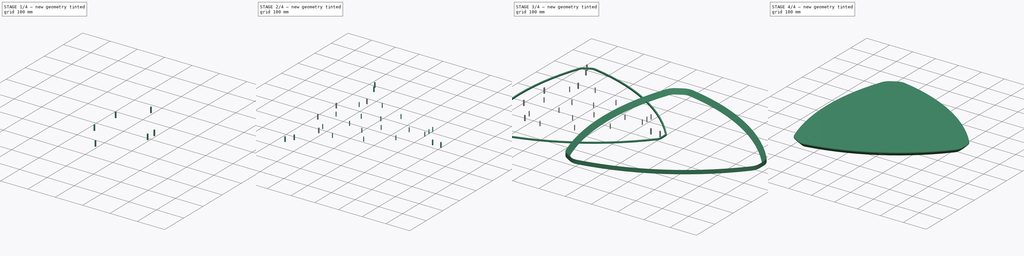
[diagram: build sequence overview — one tinted view per stage of 4, left to right]
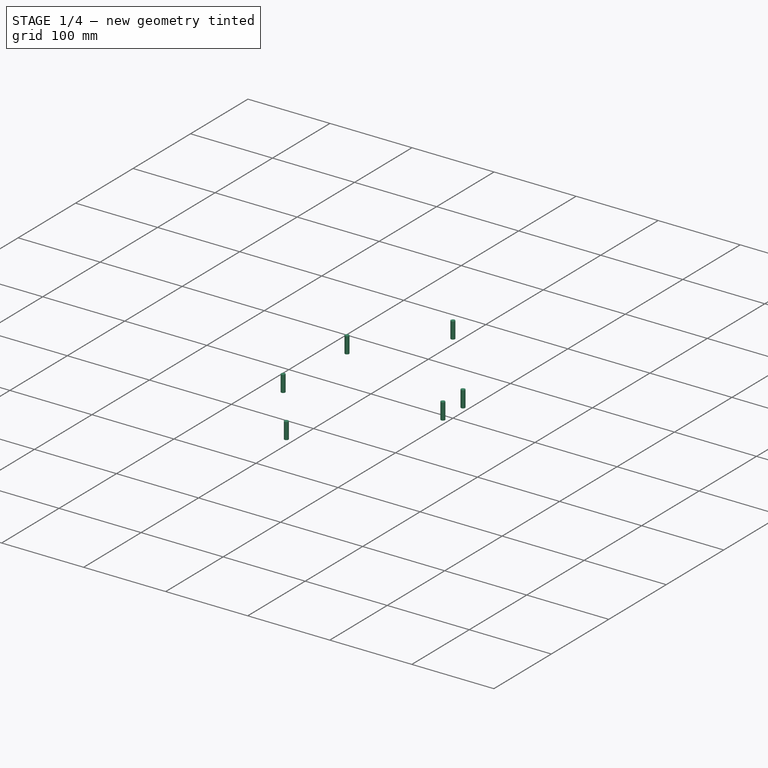
[diagram: stage 1 of 4 — iso view after this stage's code; geometry added in this stage tinted green]
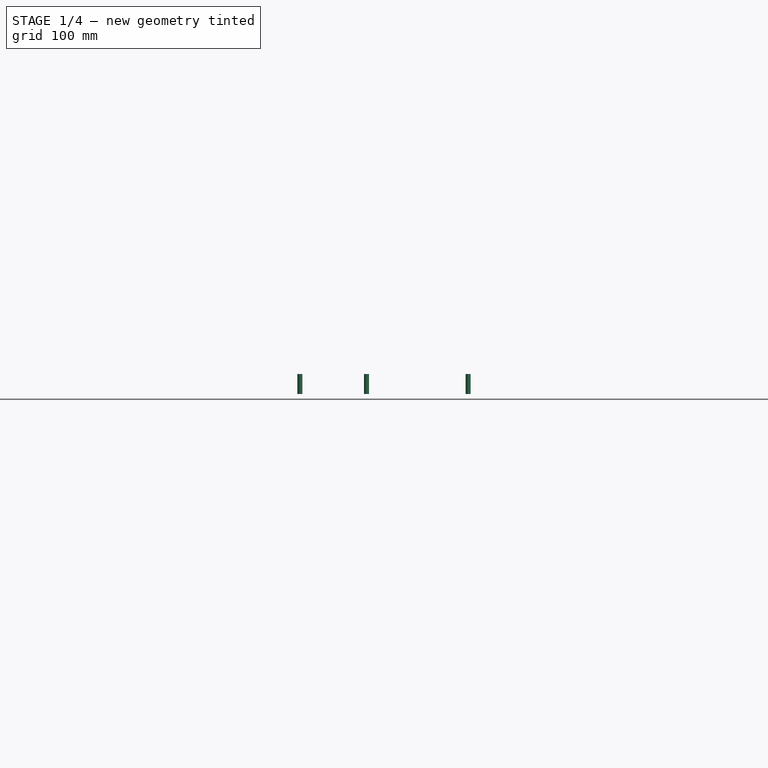
[diagram: stage 1 of 4 — front view after this stage's code; geometry added in this stage tinted green]
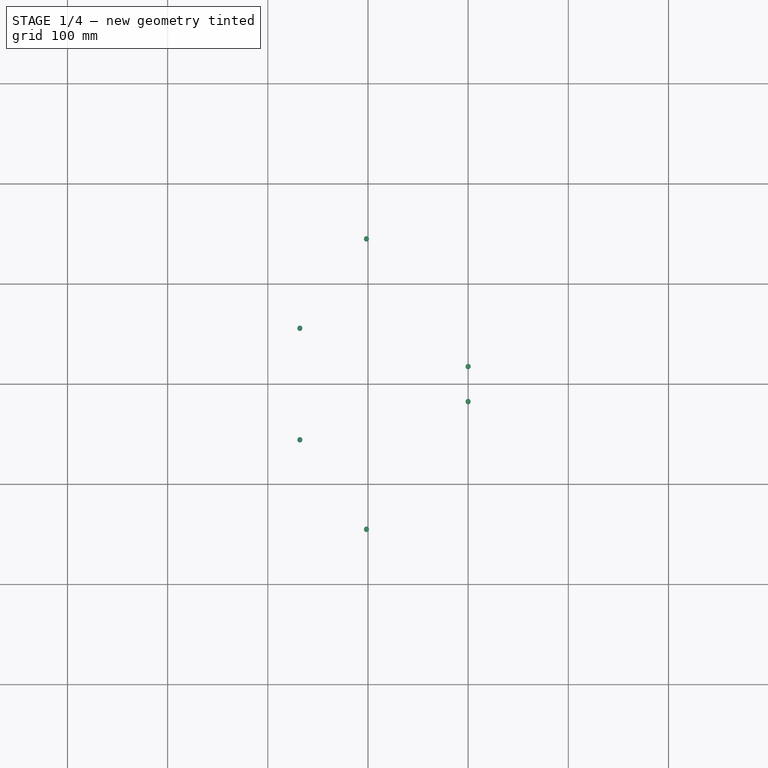
[diagram: stage 1 of 4 — top view after this stage's code; geometry added in this stage tinted green]
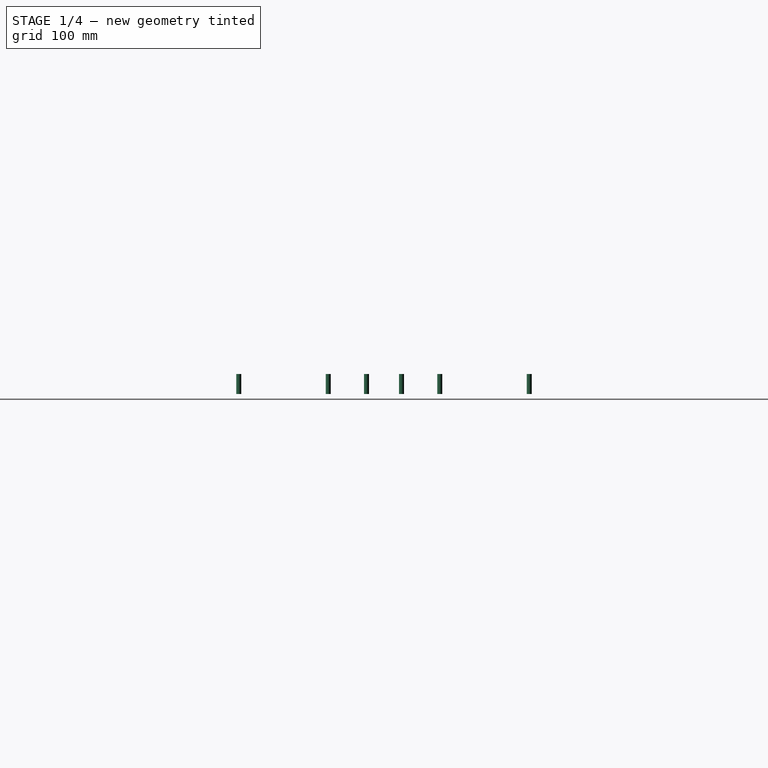
[diagram: stage 1 of 4 — right view after this stage's code; geometry added in this stage tinted green]
FCSTD DOCUMENT  (FreeCAD 1.1R38827 (Git))
Label: composit_stand3_basement_top_model
License: All rights reserved
LicenseURL: http://en.wikipedia.org/wiki/All_rights_reserved
objects: Part::FeaturePython×11, App::Link×6, PartDesign::SubShapeBinder×4, PartDesign::Body×3, PartDesign::CoordinateSystem×3, PartDesign::Pad×2, Part::Offset2D×2, Part::Face×2, Part::Cylinder×2, Part::Mirroring×1, Part::Compound×1, Sketcher::SketchObject×1, PartDesign::AdditivePipe×1, Part::Cut×1, Part::Extrusion×1, Part::MultiFuse×1, PartDesign::Boolean×1
note: 45 computed .brp shape members not serialized (recipe doc carries the construction recipe); baked Part::Feature solids carry a one-line shape summary decoded from their .brp
EXTERNAL_REF file=composit_stand3_basement_top_main.FCStd obj=Sketch
EXTERNAL_REF file=composit_stand3_basement_amplifier_main.FCStd obj=Join001
EXTERNAL_REF file=composit_stand3_basement_bottom_main.FCStd obj=Placment001
EXTERNAL_REF file=../jamb_corner.FCStd obj=Join
EXTERNAL_REF file=../U-fix.FCStd obj=Sketch002
EXTERNAL_REF file=composit_stand3_base_part1_main.FCStd obj=Placment003
EXTERNAL_REF file=composit_stand3_basin_holder_main.FCStd obj=Join

FEATURE [PartDesign::Body] Body002
  AllowCompound = false
  Group = -> [Binder003,Pad001]
  Origin = -> Origin002
  Tip = -> Pad001
FEATURE [App::Link] Link  label="amplifier_holes_placements"
  LinkedObject = -> <external composit_stand3_basement_amplifier_main.FCStd>#Join001
FEATURE [Part::Cylinder] Cylinder  label="hole_3.2mm"
  Angle = 360
  AttacherType = Attacher::AttachEngine3D
  FirstAngle = 0
  Height = 18
  Radius = 1.6
  SecondAngle = 0
FEATURE [PartDesign::CoordinateSystem] Local_CS  label="bottom_LCS"
  AttacherType = Attacher::AttachEngine3D
  AttachmentSupport = -> [XY_Plane]
  MapMode = 5
FEATURE [PartDesign::CoordinateSystem] Local_CS001  label="top_LCS"
  AttacherType = Attacher::AttachEngine3D
  AttachmentOffset = pos=(0,0,18) rot=(0,0,1;0rad)
  AttachmentSupport = -> [XY_Plane]
  MapMode = 5
  Placement = pos=(0,0,18) rot=(0,0,1;0rad)
FEATURE [App::Link] Link001  label="jamb_placement"
  LinkTransform = true
  LinkedObject = -> <external composit_stand3_basement_bottom_main.FCStd>#Placment001
FEATURE [Part::FeaturePython] Placment  label="corner_placement"  # WARN: FeaturePython — macro-defined, semantics opaque (R4)
  AttacherType = Attacher::AttachEngine3D
  ExposePlacement = true
  MarkerShape = 1
  MarkerSize = 50
  NumElements = 1
  Placement = pos=(0,-2.1,-18) rot=(0,0,1;1.5708rad)
  Type = lattice2AttachablePlacement.AttachablePlacement
  isLattice = 1
FEATURE [App::Link] Link002  label="holes_hor"
  LinkedObject = -> <external ../jamb_corner.FCStd>#Join
FEATURE [Part::FeaturePython] Populate002  label="Populate jamb_placement with corner_placement"  # WARN: FeaturePython — macro-defined, semantics opaque (R4)
  Copying = 0
  ExposePlacement = false
  MarkerShape = 1
  MarkerSize = 50
  NumElements = 1
  Object = -> Placment
  OutputCompounding = 0
  PlacementsTo = -> Link001
  Referencing = 0
  Type = lattice2PopulateCopies.LatticePopulateCopies
  isLattice = 1
FEATURE [Part::FeaturePython] Populate003  label="Populate Populate jamb_placement with corner_placement with holes_hor"  # WARN: FeaturePython — macro-defined, semantics opaque (R4)
  Copying = 0
  ExposePlacement = false
  MarkerShape = 1
  MarkerSize = 0
  NumElements = 3
  Object = -> Link002
  OutputCompounding = 0
  PlacementsTo = -> Populate002
  Referencing = 0
  Type = lattice2PopulateCopies.LatticePopulateCopies
  isLattice = 1
FEATURE [Part::FeaturePython] Join  # WARN: FeaturePython — macro-defined, semantics opaque (R4)
  ExposePlacement = false
  Interleave = false
  Links = -> [Populate003,Link]
  MarkerShape = 1
  MarkerSize = 0
  NumElements = 17
  Type = lattice2JoinArrays.JoinArrays
  isLattice = 1
FEATURE [Part::FeaturePython] Populate001  label="Populate holes_placements with Cylinder"  # WARN: FeaturePython — macro-defined, semantics opaque (R4)
  Copying = 0
  ExposePlacement = false
  MarkerShape = 1
  MarkerSize = 0
  NumElements = 0
  Object = -> Cylinder
  OutputCompounding = 1
  PlacementsTo = -> Join
  Referencing = 0
  Type = lattice2PopulateCopies.LatticePopulateCopies
  isLattice = 0
FEATURE [PartDesign::CoordinateSystem] Local_CS002  label="jamb_LCS"
  AttacherType = Attacher::AttachEngine3D
  AttachmentOffset = pos=(0,0,0) rot=(0.707107,-0.707107,0;3.14159rad)
  AttachmentSupport = -> [Populate002]
  MapMode = 7
  Placement = pos=(215,-2.1,0) rot=(0.57735,-0.57735,-0.57735;4.18879rad)
FEATURE [App::Link] Link003  label="holes_bottom"
  LinkedObject = -> <external ../U-fix.FCStd>#Sketch002
FEATURE [App::Link] Link004  label="bottom_fix_placement"
  LinkTransform = true
  LinkedObject = -> <external composit_stand3_base_part1_main.FCStd>#Placment003
FEATURE [Part::Extrusion] Extrude
  Base = -> Link003
  Dir = (0,0,1)
  DirMode = 2
  FaceMakerClass = Part::FaceMakerBullseye
  FaceMakerMode = 3
  LengthFwd = 20
  LengthRev = 0
  Solid = true
  Symmetric = false
FEATURE [App::Link] Link005  label="holes"
  LinkPlacement = pos=(0,0,0) rot=(0,0,1;3.14159rad)
  LinkedObject = -> <external composit_stand3_basin_holder_main.FCStd>#Join
  Placement = pos=(0,0,0) rot=(0,0,1;3.14159rad)
FEATURE [Part::Cylinder] Cylinder001  label="Cylinder"
  Angle = 360
  AttacherType = Attacher::AttachEngine3D
  FirstAngle = 0
  Height = 20
  Radius = 2.5
  SecondAngle = 0
FEATURE [Part::FeaturePython] Populate006  label="Populate holes with Cylinder"  # WARN: FeaturePython — macro-defined, semantics opaque (R4)
  Copying = 0
  ExposePlacement = false
  MarkerShape = 1
  MarkerSize = 0
  NumElements = 0
  Object = -> Cylinder001
  OutputCompounding = 1
  PlacementsTo = -> Link005
  Referencing = 0
  Type = lattice2PopulateCopies.LatticePopulateCopies
  isLattice = 0
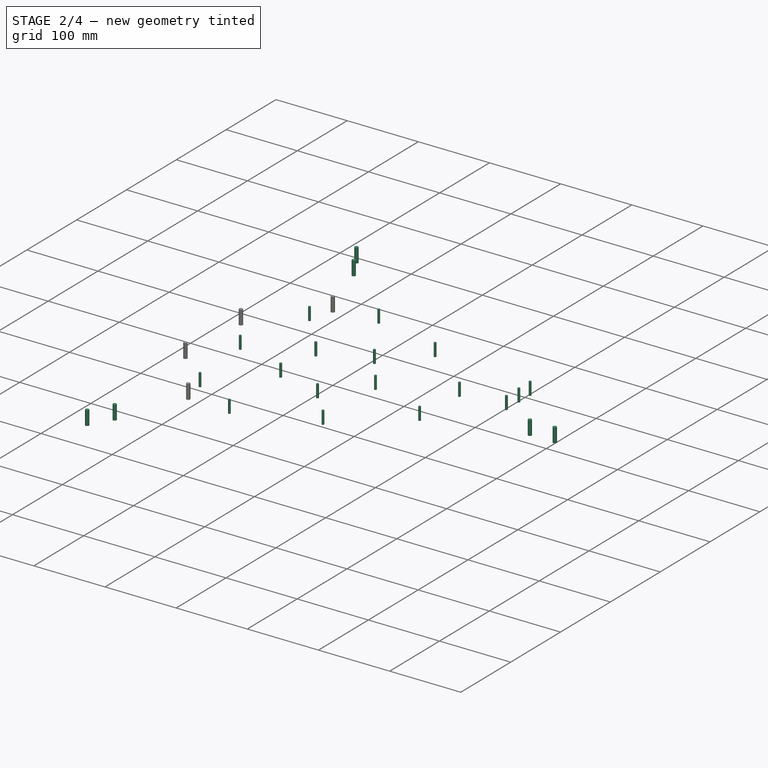
[diagram: stage 2 of 4 — iso view after this stage's code; geometry added in this stage tinted green]
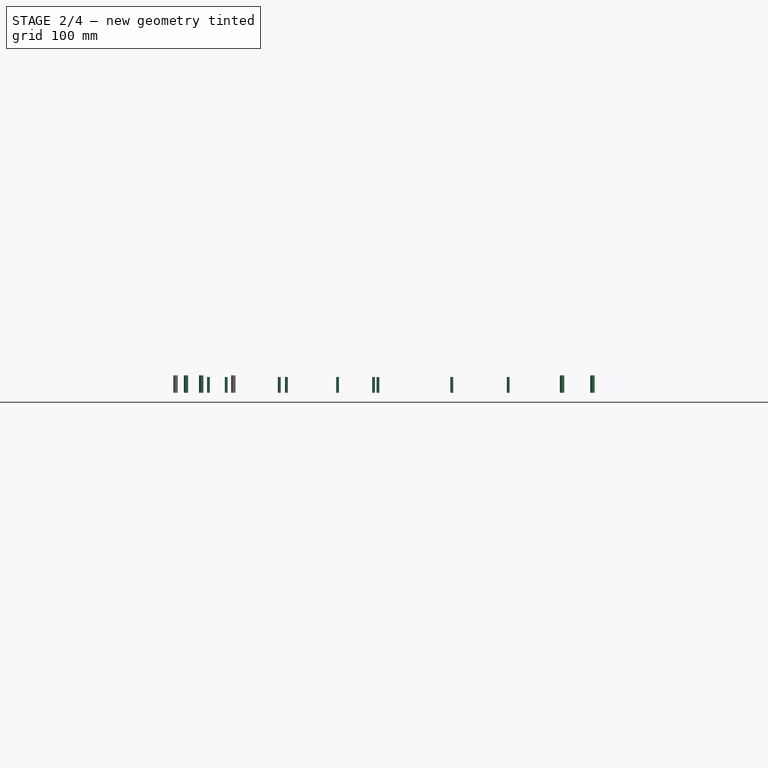
[diagram: stage 2 of 4 — front view after this stage's code; geometry added in this stage tinted green]
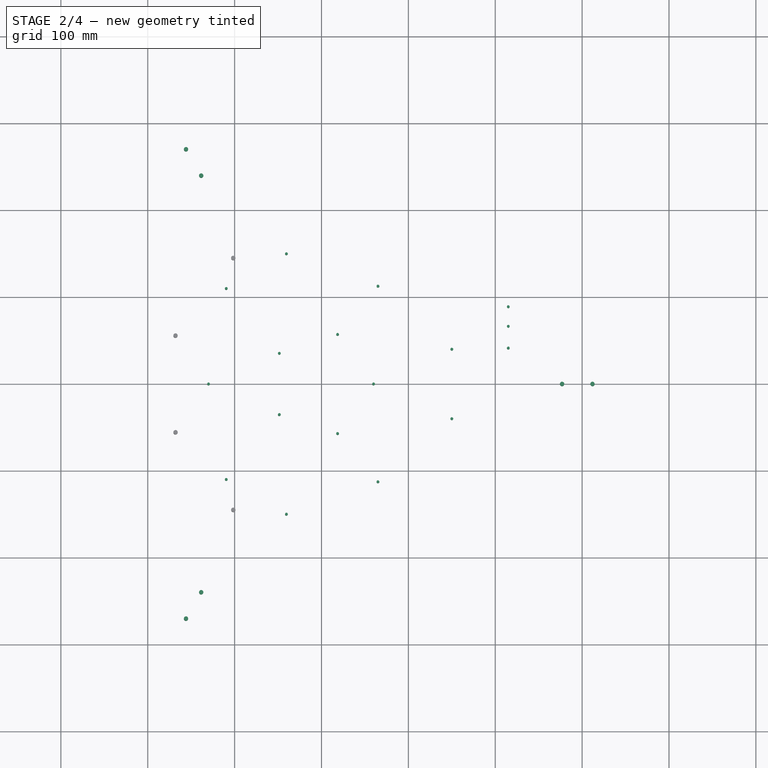
[diagram: stage 2 of 4 — top view after this stage's code; geometry added in this stage tinted green]
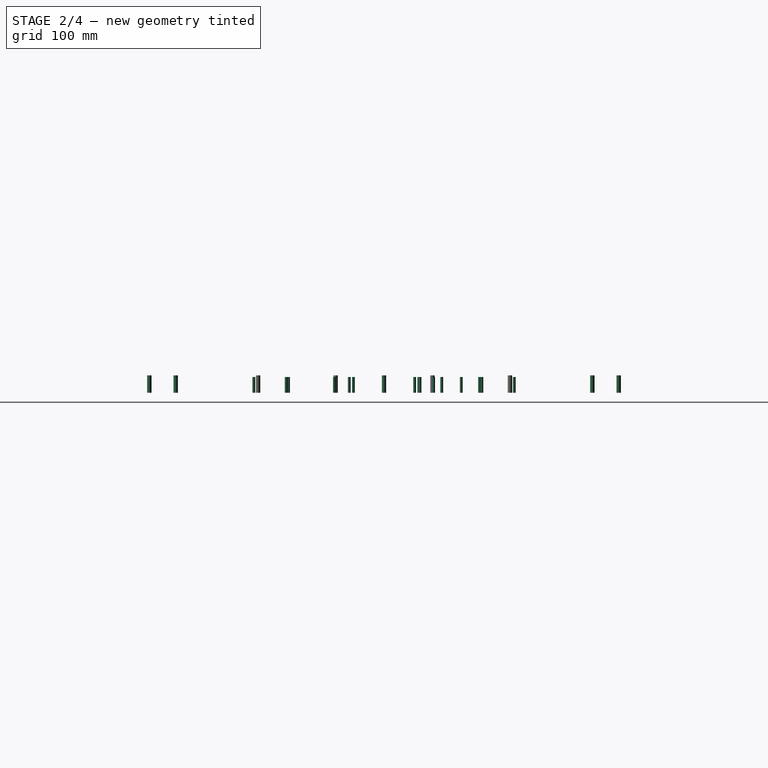
[diagram: stage 2 of 4 — right view after this stage's code; geometry added in this stage tinted green]
FEATURE [Part::FeaturePython] Populate004  label="Populate PolarArray with bottom_fix_placement"  # WARN: FeaturePython — macro-defined, semantics opaque (R4)
  Copying = 0
  ExposePlacement = false
  MarkerShape = 1
  MarkerSize = 0
  NumElements = 3
  Object = -> Link004
  OutputCompounding = 0
  PlacementsTo = -> PolarArray
  Referencing = 1
  Type = lattice2PopulateCopies.LatticePopulateCopies
  isLattice = 1
FEATURE [Part::FeaturePython] Populate005  label="Populate Populate PolarArray with bottom_fix_placement with Extrude"  # WARN: FeaturePython — macro-defined, semantics opaque (R4)
  Copying = 0
  ExposePlacement = false
  MarkerShape = 1
  MarkerSize = 0
  NumElements = 0
  Object = -> Extrude
  OutputCompounding = 1
  PlacementsTo = -> Populate004
  Referencing = 0
  Type = lattice2PopulateCopies.LatticePopulateCopies
  isLattice = 0
FEATURE [PartDesign::CoordinateSystem] Local_CS  label="base_LCS"
  AttacherType = Attacher::AttachEngine3D
  AttachmentSupport = -> [YZ_Plane]
  MapMode = 5
  Placement = pos=(0,0,0) rot=(0.57735,0.57735,0.57735;2.0944rad)
FEATURE [PartDesign::Body] Body  label="jamb_corner"
  AllowCompound = false
  Group = -> [BaseBend,Boolean,Local_CS]
  Origin = -> Origin
  Tip = -> Boolean
---- part composit_stand3_base_part1_main.FCStd = doc fcstd_83d21d27950e ----
FCSTD DOCUMENT  (FreeCAD 1.1R38827 (Git))
Label: composit_stand3_base_part1_main
License: All rights reserved
LicenseURL: http://en.wikipedia.org/wiki/All_rights_reserved
objects: Part::FeaturePython×32, Sketcher::SketchObject×7, App::Link×5, Part::Extrusion×3, PartDesign::SubShapeBinder×2, Part::MultiFuse×1, Part::Feature×1
note: 53 computed .brp shape members not serialized (recipe doc carries the construction recipe); baked Part::Feature solids carry a one-line shape summary decoded from their .brp
EXTERNAL_REF file=composit_stand3_main.FCStd obj=Sketch
EXTERNAL_REF file=composit_stand3_main.FCStd obj=LinearArray
EXTERNAL_REF file=../module.FCStd obj=Sketch
EXTERNAL_REF file=composit_stand3_sink_main.FCStd obj=Sketch001
EXTERNAL_REF file=composit_stand3_bottom_shield_main.FCStd obj=Placment
EXTERNAL_REF file=composit_stand3_bottom_shield_main.FCStd obj=LinearArray
EXTERNAL_REF file=composit_stand3_sink_main.FCStd obj=Sketch005

FEATURE [PartDesign::SubShapeBinder] Binder
  BindCopyOnChange = 0
  BindMode = 0
  ClaimChildren = true
  Fuse = false
  MakeFace = false
  OffsetFill = false
  OffsetIntersection = false
  OffsetJoinType = 0
  OffsetOpenResult = false
  PartialLoad = false
  Relative = false
  Support = -> [<external composit_stand3_main.FCStd>#Sketch]
  _Version = 2
FEATURE [Sketcher::SketchObject] Sketch
  ArcFitTolerance = 0
  ExternalGeometry = -> [Binder]
  FullyConstrained = true
  MakeInternals = false
  sketch-geometry (2):
    g0: LineSegment StartX=8.37158 StartY=14.5 StartZ=0 EndX=4.90748 EndY=14.5 EndZ=0
    g1: LineSegment StartX=4.90748 StartY=14.5 StartZ=0 EndX=-2.59252 EndY=27.4904 EndZ=0
  constraints (7):
    c: Horizontal(g0)
    c: Coincident(g0,g1)
    c: Angle(g1) = 2.0944
    c: Coincident(g0,g-3)
    c: Distance(g0,g1) = 3
    c: Distance(g1) = 15
    c: DistanceX(g0) = 4.90748  'x_offset'
FEATURE [Part::FeaturePython] LinearArray  # WARN: FeaturePython — macro-defined, semantics opaque (R4)
  Alignment = 0
  CellStart = A1
  Count = 11
  Dir = (0,0,-1)
  DirIsDriven = true
  DistributionLaw = 0
  DrivenProperty = 1
  EndInclusive = true
  ExposePlacement = false
  GeneratorMode = 1
  MarkerShape = 1
  MarkerSize = 0
  NumElements = 11
  OrientMode = 0
  Point = (0,0,0)
  PointIsDriven = true
  Reverse = false
  SpanEnd = 827
  SpanStart = 27
  Step = 80
  Type = lattice2LinearArray.LinearArray
  VSGVersion = 1
  Values = 27.0 | 107.0 | 187.0 | 267.0 | 347.0 | 427.0 | 507.0 | 587.0 | 667.0 | 747.0 | 827.0
  ValuesSource = 2
  isLattice = 1
  expr: SpanEnd = Step * (Count - 1) * 1 mm + SpanStart
FEATURE [App::Link] Link  label="modules_placement_x"
  LinkTransform = true
  LinkedObject = -> <external composit_stand3_main.FCStd>#LinearArray
FEATURE [Part::FeaturePython] Placment  label="top_placement"  # WARN: FeaturePython — macro-defined, semantics opaque (R4)
  AttacherType = Attacher::AttachEngine3D
  ExposePlacement = true
  MarkerShape = 1
  MarkerSize = 200
  NumElements = 1
  Placement = pos=(0,0,1428) rot=(0,0,1;0rad)
  Type = lattice2AttachablePlacement.AttachablePlacement
  isLattice = 1
FEATURE [Part::FeaturePython] Populate  label="Populate modules_placement_x with LinearArray"  # WARN: FeaturePython — macro-defined, semantics opaque (R4)
  Copying = 0
  ExposePlacement = false
  MarkerShape = 1
  MarkerSize = 0
  NumElements = 22
  Object = -> LinearArray
  OutputCompounding = 0
  PlacementsTo = -> Link
  Referencing = 0
  Type = lattice2PopulateCopies.LatticePopulateCopies
  isLattice = 1
FEATURE [Part::FeaturePython] Populate001  label="Populate Placment with Populate modules_placement_x with LinearArray"  # WARN: FeaturePython — macro-defined, semantics opaque (R4)
  Copying = 0
  ExposePlacement = false
  MarkerShape = 1
  MarkerSize = 0
  NumElements = 22
  Object = -> Populate
  OutputCompounding = 0
  PlacementsTo = -> Placment
  Referencing = 0
  Type = lattice2PopulateCopies.LatticePopulateCopies
  isLattice = 1
FEATURE [Sketcher::SketchObject] Sketch004
  ArcFitTolerance = 0
  FullyConstrained = true
  MakeInternals = false
  Placement = pos=(8.37158,14.5,0) rot=(0.774597,-0.447214,-0.447214;1.82348rad)
  expr: .Placement.Base.x = composit_stand3_main#<<main_sketch>>.Constraints.x_face_offset
  expr: Constraints[9] = <<basin_cut_sketch>>.Constraints.height + <<basin_cut_top_sketch>>.Constraints.sink_cut_height
  sketch-geometry (4):
    g0: LineSegment StartX=0 StartY=0 StartZ=0 EndX=0 EndY=445 EndZ=0
    g1: LineSegment StartX=0 StartY=445 StartZ=0 EndX=-1 EndY=445 EndZ=0
    g2: LineSegment StartX=-1 StartY=445 StartZ=0 EndX=-1 EndY=0 EndZ=0
    g3: LineSegment StartX=-1 StartY=0 StartZ=0 EndX=0 EndY=0 EndZ=0
  constraints (11):
    c: Coincident(g0,g1)
    c: Coincident(g1,g2)
    c: Coincident(g2,g3)
    c: Coincident(g3,g0)
    c: Vertical(g0)
    c: Vertical(g2)
    c: Horizontal(g1)
    c: Horizontal(g3)
    c: Coincident(g0,g-1)
    c: DistanceY(g0,g0) = 445
    c: DistanceX(g3,g3) = 1
FEATURE [Part::Extrusion] Extrude003
  Base = -> Sketch004
  Dir = (-0.866025,-0.5,2e-16)
  DirMode = 2
  FaceMakerClass = Part::FaceMakerBullseye
  FaceMakerMode = 3
  LengthFwd = 10
  LengthRev = 0
  Solid = true
  Symmetric = false
FEATURE [App::Link] Link002  label="edge_placement"
  LinkTransform = true
  LinkedObject = -> <external composit_stand3_bottom_shield_main.FCStd>#Placment
FEATURE [App::Link] Link003  label="fix_placements"
  LinkTransform = true
  LinkedObject = -> <external composit_stand3_bottom_shield_main.FCStd>#LinearArray
FEATURE [Sketcher::SketchObject] Sketch005  label="shield_fix_hole_sketch"
  ArcFitTolerance = 0
  FullyConstrained = true
  MakeInternals = false
  sketch-geometry (5):
    g0: LineSegment StartX=-3.2 StartY=-26.4022 StartZ=0 EndX=0 EndY=-26.4022 EndZ=0
    g1: LineSegment StartX=0 StartY=-26.4022 StartZ=0 EndX=0 EndY=26.4022 EndZ=0
    g2: LineSegment StartX=0 StartY=26.4022 StartZ=0 EndX=-3.2 EndY=26.4022 EndZ=0
    g3: LineSegment StartX=-3.2 StartY=26.4022 StartZ=0 EndX=-3.2 EndY=-26.4022 EndZ=0
    g4: GeomPoint [constr] X=-1.6 Y=0 Z=0
  constraints (13):
    c: Coincident(g0,g1)
    c: Coincident(g1,g2)
    c: Coincident(g2,g3)
    c: Coincident(g3,g0)
    c: Horizontal(g0)
    c: Horizontal(g2)
    c: Vertical(g1)
    c: Vertical(g3)
    c: Symmetric(g2,g0,g4)
    c: PointOnObject(g4,g-1)
    c: PointOnObject(g1,g-2)
    c: DistanceX(g0,g1) = 3.2
    c: DistanceY(g0,g1) = 52.8044
FEATURE [Part::FeaturePython] Placment005  label="shield_placement"  # WARN: FeaturePython — macro-defined, semantics opaque (R4)
  AttacherType = Attacher::AttachEngine3D
  ExposePlacement = true
  MarkerShape = 1
  MarkerSize = 50
  NumElements = 1
  Placement = pos=(0,0,0) rot=(0,0,1;1.0472rad)
  Type = lattice2AttachablePlacement.AttachablePlacement
  isLattice = 1
FEATURE [Part::FeaturePython] Placment006  label="Custom"  # WARN: FeaturePython — macro-defined, semantics opaque (R4)
  ExposePlacement = true
  FlipZ = false
  Invert = false
  MarkerShape = 1
  MarkerSize = 50
  NumElements = 1
  Placement = pos=(0,0,0) rot=(0.774597,0.447214,0.447214;1.82348rad)
  PlacementChoice = 0
  Type = lattice2Placement.LatticePlacement
  isLattice = 1
FEATURE [Part::FeaturePython] Populate008  label="Populate edge_placement with fix_placements"  # WARN: FeaturePython — macro-defined, semantics opaque (R4)
  Copying = 0
  ExposePlacement = false
  MarkerShape = 1
  MarkerSize = 0
  NumElements = 4
  Object = -> Link003
  OutputCompounding = 0
  PlacementsTo = -> Link002
  Referencing = 0
  Type = lattice2PopulateCopies.LatticePopulateCopies
  isLattice = 1
FEATURE [Part::FeaturePython] Populate009  label="Populate Populate edge_placement with fix_placements with Custom"  # WARN: FeaturePython — macro-defined, semantics opaque (R4)
  Copying = 0
  ExposePlacement = false
  MarkerShape = 1
  MarkerSize = 0
  NumElements = 4
  Object = -> Placment006
  OutputCompounding = 0
  PlacementsTo = -> Populate008
  Referencing = 0
  Type = lattice2PopulateCopies.LatticePopulateCopies
  isLattice = 1
FEATURE [Part::FeaturePython] Mirror002  label="Mirror002 of Populate Populate edge_placement with fix_placements with Custom"  # WARN: FeaturePython — macro-defined, semantics opaque (R4)
  ExposePlacement = false
  FlipX = false
  FlipY = true
  FlipZ = false
  MarkerShape = 1
  MarkerSize = 0
  NumElements = 4
  Object = -> Populate009
  ObjectTraversal = 0
  Type = lattice2Mirror.LatticeMirror
  isLattice = 1
FEATURE [Part::FeaturePython] Populate011  label="Populate shield_placement with Mirror002 of Populate Populate edge_placement with fix_placements with Custom"  # WARN: FeaturePython — macro-defined, semantics opaque (R4)
  Copying = 0
  ExposePlacement = false
  MarkerShape = 1
  MarkerSize = 0
  NumElements = 4
  Object = -> Mirror002
  OutputCompounding = 0
  PlacementsTo = -> Placment005
  Referencing = 0
  Type = lattice2PopulateCopies.LatticePopulateCopies
  isLattice = 1
FEATURE [Part::FeaturePython] Join002  label="shield_fix_holes"  # WARN: FeaturePython — macro-defined, semantics opaque (R4)
  ExposePlacement = false
  Interleave = false
  Links = -> [Populate011]
  MarkerShape = 1
  MarkerSize = 0
  NumElements = 4
  Type = lattice2JoinArrays.JoinArrays
  isLattice = 1
FEATURE [Part::FeaturePython] LinearArray002  label="leg_fix_placements"  # WARN: FeaturePython — macro-defined, semantics opaque (R4)
  Alignment = 0
  CellStart = A1
  Count = 3
  Dir = (1,0,0)
  DirIsDriven = true
  DistributionLaw = 0
  DrivenProperty = 1
  EndInclusive = true
  ExposePlacement = false
  GeneratorMode = 0
  MarkerShape = 1
  MarkerSize = 0
  NumElements = 3
  OrientMode = 1
  Placement = pos=(245,14.5,0) rot=(0.57735,0.57735,0.57735;4.18879rad)
  Point = (0,0,0)
  PointIsDriven = true
  Reverse = false
  SpanEnd = 390
  SpanStart = 20
  Step = 185
  Type = lattice2LinearArray.LinearArray
  VSGVersion = 1
  Values = 20.0 | 205.0 | 390.0
  ValuesSource = 2
  isLattice = 1
  expr: .Placement.Base.y = <<composit_stand3_main>>#<<main_sketch>>.Constraints.end_width / 2
FEATURE [Part::FeaturePython] Placment007  # WARN: FeaturePython — macro-defined, semantics opaque (R4)
  AttacherType = Attacher::AttachEngine3D
  AttachmentOffset = pos=(3,0,4.42) rot=(0.57735,0.57735,0.57735;2.0944rad)
  AttachmentSupport = -> [Sketch]
  ExposePlacement = true
  MapMode = 7
  MarkerShape = 1
  MarkerSize = 20
  NumElements = 1
  Placement = pos=(2.21555,25.1625,0) rot=(0.694747,0.186157,0.694747;3.50969rad)
  Type = lattice2AttachablePlacement.AttachablePlacement
  isLattice = 1
FEATURE [Part::FeaturePython] Placment008  label="magnet_fix_placement"  # WARN: FeaturePython — macro-defined, semantics opaque (R4)
  AttacherType = Attacher::AttachEngine3D
  ExposePlacement = true
  MarkerShape = 1
  MarkerSize = 50
  NumElements = 1
  Placement = pos=(308.872,-14.5,248) rot=(1,0,0;1.5708rad)
  Type = lattice2AttachablePlacement.AttachablePlacement
  isLattice = 1
  expr: .Placement.Base.x = 300.5 mm + <<composit_stand3_main>>#<<main_sketch>>.Constraints.x_face_offset
  expr: .Placement.Base.y = -<<composit_stand3_main>>#<<main_sketch>>.Constraints.end_width / 2
FEATURE [Part::Feature] Body159  label="part1_material_0.30ansi002"
  Placement = pos=(0,0,0) rot=(0,0,-1;1.5708rad)
  shape: bbox 356 x 59.31 x 1428 mm, 498 faces (baked)
FEATURE [Part::FeaturePython] LinearArray003  # WARN: FeaturePython — macro-defined, semantics opaque (R4)
  Alignment = 0
  CellStart = A1
  Count = 5
  Dir = (1,0,0)
  DirIsDriven = true
  DistributionLaw = 0
  DrivenProperty = 1
  EndInclusive = true
  ExposePlacement = false
  GeneratorMode = 0
  MarkerShape = 1
  MarkerSize = 0
  NumElements = 5
  OrientMode = 1
  Point = (0,0,0)
  PointIsDriven = true
  Reverse = false
  SpanEnd = 1343
  SpanStart = 523
  Step = 205
  Type = lattice2LinearArray.LinearArray
  VSGVersion = 1
  Values = 523.0 | 728.0 | 933.0 | 1138.0 | 1343.0
  ValuesSource = 2
  isLattice = 1
FEATURE [Part::FeaturePython] Populate012  label="parts_fix_holes"  # WARN: FeaturePython — macro-defined, semantics opaque (R4)
  Copying = 0
  ExposePlacement = false
  MarkerShape = 1
  MarkerSize = 0
  NumElements = 5
  Object = -> LinearArray003
  OutputCompounding = 0
  PlacementsTo = -> Placment007
  Referencing = 0
  Type = lattice2PopulateCopies.LatticePopulateCopies
  isLattice = 1
FEATURE [Part::FeaturePython] Placment009  # WARN: FeaturePython — macro-defined, semantics opaque (R4)
  AttacherType = Attacher::AttachEngine3D
  ExposePlacement = true
  MarkerShape = 1
  MarkerSize = 20
  NumElements = 1
  Placement = pos=(181.372,0,0) rot=(0,0,1;0rad)
  Type = lattice2AttachablePlacement.AttachablePlacement
  isLattice = 1
  expr: .Placement.Base.x = <<modules_placement_x>>.LinkedObject.Placement.Base.x * 1 mm + (<<modules_placement_x>>.LinkedObject.SpanStart + <<modules_placement_x>>.LinkedObject.SpanEnd) / 2
FEATURE [Part::FeaturePython] PolarArray  # WARN: FeaturePython — macro-defined, semantics opaque (R4)
  Alignment = 0
  AttacherType = Attacher::AttachEngine3D
  CellStart = A1
  Count = 2
  DistributionLaw = 0
  EndInclusive = false
  ExposePlacement = false
  FlipX = false
  FlipZ = false
  GeneratorMode = 0
  MarkerShape = 1
  MarkerSize = 50
  NumElements = 2
  OrientMode = 2
  Radius = 0
  Reverse = false
  SpanEnd = 360
  SpanStart = 0
  Step = 180
  Type = lattice2PolarArray2.PolarArray
  UseArcRadius = false
  UseArcRange = 0
  VSGVersion = 1
  Values = 0.0 | 180.0
  ValuesSource = 2
  isLattice = 1
FEATURE [Part::FeaturePython] Populate013  label="Populate PolarArray with Populate Populate Placment with Populate modules_placement_x with LinearArray with Placment001"  # WARN: FeaturePython — macro-defined, semantics opaque (R4)
  Copying = 0
  ExposePlacement = false
  MarkerShape = 1
  MarkerSize = 0
  NumElements = 44
  Object = -> Populate002
  OutputCompounding = 0
  PlacementsFrom = -> Placment009
  PlacementsTo = -> PolarArray
  Referencing = 3
  Type = lattice2PopulateCopies.LatticePopulateCopies
  isLattice = 1
FEATURE [Part::FeaturePython] Populate014  label="Populate Placment009 with Populate PolarArray with Populate Populate Placment with Populate modules_placement_x with LinearArray with Placment001"  # WARN: FeaturePython — macro-defined, semantics opaque (R4)
  Copying = 0
  ExposePlacement = false
  MarkerShape = 1
  MarkerSize = 0
  NumElements = 44
  Object = -> Populate013
  OutputCompounding = 0
  PlacementsTo = -> Placment009
  Referencing = 0
  Type = lattice2PopulateCopies.LatticePopulateCopies
  isLattice = 1
FEATURE [Part::FeaturePython] Join  label="modules_placements"  # WARN: FeaturePython — macro-defined, semantics opaque (R4)
  ExposePlacement = false
  Interleave = false
  Links = -> [Populate014]
  MarkerShape = 1
  MarkerSize = 0
  NumElements = 44
  Type = lattice2JoinArrays.JoinArrays
  isLattice = 1
FEATURE [App::Link] Link004  label="side_holes_half_sketch"
  LinkTransform = true
  LinkedObject = -> <external composit_stand3_sink_main.FCStd>#Sketch005
FEATURE [PartDesign::SubShapeBinder] Binder001
  BindCopyOnChange = 0
  BindMode = 0
  ClaimChildren = false
  Fuse = false
  MakeFace = true
  OffsetFill = false
  OffsetIntersection = false
  OffsetJoinType = 0
  OffsetOpenResult = false
  PartialLoad = false
  Relative = true
  Support = -> [Link004]
  _Version = 2
FEATURE [Sketcher::SketchObject] Sketch006
  ArcFitTolerance = 1e-06
  ExternalGeometry = -> [Binder001]
  FullyConstrained = true
  MakeInternals = false
  Placement = pos=(0,0,0) rot=(0.774597,0.447214,0.447214;1.82348rad)
  sketch-geometry (6):
    g0: Circle CenterX=13.8756 CenterY=84 CenterZ=0 NormalX=0 NormalY=0 NormalZ=1 AngleXU=0 Radius=1.7
    g1: Circle CenterX=173.002 CenterY=84 CenterZ=0 NormalX=0 NormalY=0 NormalZ=1 AngleXU=0 Radius=1.7
    g2: Circle CenterX=332.128 CenterY=84 CenterZ=0 NormalX=0 NormalY=0 NormalZ=1 AngleXU=0 Radius=1.7
    g3: Circle CenterX=332.128 CenterY=34 CenterZ=0 NormalX=0 NormalY=0 NormalZ=1 AngleXU=0 Radius=1.7
    g4: LineSegment [constr] StartX=13.8756 StartY=84 StartZ=0 EndX=14.3756 EndY=84 EndZ=0
    g5: LineSegment [constr] StartX=331.628 StartY=84 StartZ=0 EndX=332.128 EndY=84 EndZ=0
  constraints (15):
    c: Symmetric(g0,g2,g1)
    c: Horizontal(g0,g2)
    c: Coincident(g4,g0)
    c: Coincident(g4,g-3)
    c: Coincident(g5,g-4)
    c: Coincident(g5,g2)
    c: Equal(g4,g5)
    c: DistanceX(g4,g4) = 0.5
    c: Equal(g3,g2)
    c: Equal(g3,g1)
    c: Equal(g3,g0)
    c: Diameter(g3) = 3.4
    c: Horizontal(g4)
    c: Horizontal(g3,g-5)
    c: Vertical(g3,g2)
FEATURE [Part::FeaturePython] Downgrade  label="Edges of Sketch006"  # WARN: FeaturePython — macro-defined, semantics opaque (R4)
  Base = -> Sketch006
  Mode = 8
FEATURE [Part::FeaturePython] ArrayFromShape  label="Array from Edges of Sketch006"  # WARN: FeaturePython — macro-defined, semantics opaque (R4)
  CompoundTraversal = 1
  ExposePlacement = false
  MarkerShape = 1
  MarkerSize = 20
  NumElements = 4
  OrientElementIndex = 0
  OrientMode = 2
  ShapeLink = -> Downgrade
  TranslateElementIndex = 0
  TranslateMode = 3
  Type = lattice2ArrayFromShape.LatticeArrayFromShape
  isLattice = 1
FEATURE [Part::FeaturePython] Mirror  label="Mirror of Array from Edges of Sketch006"  # WARN: FeaturePython — macro-defined, semantics opaque (R4)
  ExposePlacement = false
  FlipX = false
  FlipY = true
  FlipZ = false
  MarkerShape = 1
  MarkerSize = 0
  NumElements = 4
  Object = -> ArrayFromShape
  ObjectTraversal = 0
  Type = lattice2Mirror.LatticeMirror
  isLattice = 1
FEATURE [Part::FeaturePython] Join003  label="sink_holes"  # WARN: FeaturePython — macro-defined, semantics opaque (R4)
  ExposePlacement = false
  Interleave = false
  Links = -> [ArrayFromShape,Mirror]
  MarkerShape = 1
  MarkerSize = 0
  NumElements = 8
  Type = lattice2JoinArrays.JoinArrays
  isLattice = 1
---- part composit_stand3_basement_amplifier_main.FCStd = doc fcstd_07f535898d8e ----
FCSTD DOCUMENT  (FreeCAD 1.1R38827 (Git))
Label: composit_stand3_basement_amplifier_main
License: All rights reserved
LicenseURL: http://en.wikipedia.org/wiki/All_rights_reserved
objects: Part::FeaturePython×7, PartDesign::SubShapeBinder×2, Sketcher::SketchObject×2, App::Link×1, Part::Cylinder×1, PartDesign::Revolution×1, PartDesign::Body×1
note: 18 computed .brp shape members not serialized (recipe doc carries the construction recipe); baked Part::Feature solids carry a one-line shape summary decoded from their .brp
EXTERNAL_REF file=composit_stand3_basement_bottom_main.FCStd obj=Sketch
EXTERNAL_REF file=composit_stand3_basement_top_main.FCStd obj=Sketch
EXTERNAL_REF file=composit_stand3_basement_bearing_holder_main.FCStd obj=Join

FEATURE [PartDesign::SubShapeBinder] Binder
  BindCopyOnChange = 0
  BindMode = 0
  ClaimChildren = false
  Fuse = false
  MakeFace = true
  OffsetFill = false
  OffsetIntersection = false
  OffsetJoinType = 0
  OffsetOpenResult = false
  PartialLoad = false
  Relative = true
  Support = -> [<external composit_stand3_basement_bottom_main.FCStd>#Sketch]
  _Version = 2
FEATURE [PartDesign::SubShapeBinder] Binder001
  BindCopyOnChange = 0
  BindMode = 0
  ClaimChildren = false
  Fuse = false
  MakeFace = true
  OffsetFill = false
  OffsetIntersection = false
  OffsetJoinType = 0
  OffsetOpenResult = false
  PartialLoad = false
  Relative = true
  Support = -> [<external composit_stand3_basement_top_main.FCStd>#Sketch]
  _Version = 2
FEATURE [Sketcher::SketchObject] Sketch
  ArcFitTolerance = 0
  ExternalGeometry = -> [Binder001]
  FullyConstrained = true
  MakeInternals = false
  expr: Constraints[6] = <<composit_stand3_basement_bottom_main>>#<<basement_bottom_main_sketch>>.Constraints.min_r - 20 mm
  sketch-geometry (5):
    g0: LineSegment [constr] StartX=0 StartY=0 StartZ=0 EndX=75 EndY=129.904 EndZ=0
    g1: ArcOfCircle CenterX=-272.703 CenterY=-472.335 CenterZ=0 NormalX=0 NormalY=0 NormalZ=1 AngleXU=0 Radius=695.406 StartAngle=0.871298 EndAngle=1.0472
    g2: ArcOfCircle CenterX=155.708 CenterY=36.8099 CenterZ=0 NormalX=0 NormalY=0 NormalZ=1 AngleXU=0 Radius=30 StartAngle=0.232142 EndAngle=0.871298
    g3: ArcOfCircle CenterX=0 CenterY=0 CenterZ=0 NormalX=0 NormalY=0 NormalZ=1 AngleXU=0 Radius=190 StartAngle=0 EndAngle=0.232142
    g4: Circle [constr] CenterX=0 CenterY=0 CenterZ=0 NormalX=0 NormalY=0 NormalZ=1 AngleXU=0 Radius=545.406
  constraints (14):
    c: Coincident(g0,g-1)
    c: Angle(g0) = 1.0472
    c: Coincident(g1,g0)
    c: PointOnObject(g3,g-1)
    c: Tangent(g3,g2) = -1.5708
    c: Tangent(g2,g1) = -1.5708
    c: Distance(g0) = 150
    c: Coincident(g4,g0)
    c: PointOnObject(g-3,g4)
    c: Coincident(g1,g-3)
    c: DistanceX(g3) = 190
    c: Radius(g2) = 30
    c: PointOnObject(g3,g-1)
    c: PointOnObject(g3,g-2)
FEATURE [Part::FeaturePython] Placment  # WARN: FeaturePython — macro-defined, semantics opaque (R4)
  AttacherType = Attacher::AttachEngine3D
  ExposePlacement = true
  MarkerShape = 1
  MarkerSize = 20
  NumElements = 1
  Placement = pos=(65,112.583,0) rot=(0,0,1;0rad)
  Type = lattice2AttachablePlacement.AttachablePlacement
  isLattice = 1
  expr: .Placement.Base.y = .Placement.Base.x * tan(60)
FEATURE [Part::FeaturePython] Placment001  # WARN: FeaturePython — macro-defined, semantics opaque (R4)
  AttacherType = Attacher::AttachEngine3D
  ExposePlacement = true
  MarkerShape = 1
  MarkerSize = 20
  NumElements = 1
  Placement = pos=(150,40,0) rot=(0,0,1;0rad)
  Type = lattice2AttachablePlacement.AttachablePlacement
  isLattice = 1
FEATURE [Part::FeaturePython] Mirror  label="Mirror of Placment001"  # WARN: FeaturePython — macro-defined, semantics opaque (R4)
  ExposePlacement = false
  FlipX = false
  FlipY = true
  FlipZ = false
  MarkerShape = 1
  MarkerSize = 20
  NumElements = 1
  Object = -> Placment001
  ObjectTraversal = 0
  PivotPlacement = pos=(0,0,0) rot=(0,0,1;1.0472rad)
  Type = lattice2Mirror.LatticeMirror
  isLattice = 1
FEATURE [Part::FeaturePython] Join  # WARN: FeaturePython — macro-defined, semantics opaque (R4)
  ExposePlacement = false
  Interleave = false
  Links = -> [Placment,Placment001,Mirror]
  MarkerShape = 1
  MarkerSize = 0
  NumElements = 3
  Type = lattice2JoinArrays.JoinArrays
  isLattice = 1
FEATURE [Part::FeaturePython] PolarArray  # WARN: FeaturePython — macro-defined, semantics opaque (R4)
  Alignment = 0
  AttacherType = Attacher::AttachEngine3D
  CellStart = A1
  Count = 3
  DistributionLaw = 0
  EndInclusive = false
  ExposePlacement = false
  FlipX = false
  FlipZ = false
  GeneratorMode = 0
  MarkerShape = 1
  MarkerSize = 0
  NumElements = 3
  OrientMode = 2
  Radius = 100
  Reverse = false
  SpanEnd = 360
  SpanStart = 0
  Step = 120
  Type = lattice2PolarArray2.PolarArray
  UseArcRadius = false
  UseArcRange = 0
  VSGVersion = 1
  Values = 0.0 | 120.0 | 240.0
  ValuesSource = 2
  isLattice = 1
FEATURE [Part::FeaturePython] Populate  label="Populate PolarArray with Join"  # WARN: FeaturePython — macro-defined, semantics opaque (R4)
  Copying = 0
  ExposePlacement = false
  MarkerShape = 1
  MarkerSize = 0
  NumElements = 9
  Object = -> Join
  OutputCompounding = 0
  PlacementsTo = -> PolarArray
  Referencing = 1
  Type = lattice2PopulateCopies.LatticePopulateCopies
  isLattice = 1
FEATURE [App::Link] Link  label="bearing_holes_placements"
  LinkedObject = -> <external composit_stand3_basement_bearing_holder_main.FCStd>#Join
FEATURE [Part::FeaturePython] Join001  label="holes_placements"  # WARN: FeaturePython — macro-defined, semantics opaque (R4)
  ExposePlacement = false
  Interleave = false
  Links = -> [Populate,Link]
  MarkerShape = 1
  MarkerSize = 0
  NumElements = 14
  Type = lattice2JoinArrays.JoinArrays
  isLattice = 1
FEATURE [Part::Cylinder] Cylinder  label="axis_bolt"
  Angle = 360
  AttacherType = Attacher::AttachEngine3D
  FirstAngle = 0
  Height = 20
  Radius = 6
  SecondAngle = 0
FEATURE [Sketcher::SketchObject] Sketch001
  ArcFitTolerance = 0
  AttachmentSupport = -> [XZ_Plane]
  FullyConstrained = true
  MakeInternals = false
  MapMode = 5
  Placement = pos=(0,0,0) rot=(1,0,0;1.5708rad)
  sketch-geometry (9):
    g0: LineSegment StartX=0 StartY=0 StartZ=0 EndX=2.65 EndY=0 EndZ=0
    g1: LineSegment StartX=2.65 StartY=0 StartZ=0 EndX=2.65 EndY=14.6432 EndZ=0
    g2: LineSegment StartX=2.65 StartY=14.6432 StartZ=0 EndX=3.825 EndY=14.6432 EndZ=0
    g3: LineSegment StartX=3.825 StartY=14.6432 StartZ=0 EndX=3.825 EndY=16 EndZ=0
    g4: LineSegment StartX=3.825 StartY=16 StartZ=0 EndX=5 EndY=16 EndZ=0
    g5: LineSegment StartX=5 StartY=16 StartZ=0 EndX=5 EndY=18 EndZ=0
    g6: LineSegment StartX=5 StartY=18 StartZ=0 EndX=0 EndY=18 EndZ=0
    g7: LineSegment StartX=0 StartY=18 StartZ=0 EndX=0 EndY=0 EndZ=0
    g8: LineSegment [constr] StartX=2.65 StartY=14.6432 StartZ=0 EndX=5 EndY=16 EndZ=0
  constraints (25):
    c: Coincident(g-1,g0)
    c: PointOnObject(g0,g-1)
    c: Coincident(g0,g1)
    c: Vertical(g1)
    c: Coincident(g1,g2)
    c: Horizontal(g2)
    c: Coincident(g2,g3)
    c: Vertical(g3)
    c: Coincident(g3,g4)
    c: Horizontal(g4)
    c: Coincident(g4,g5)
    c: Vertical(g5)
    c: Coincident(g5,g6)
    c: Horizontal(g6)
    c: Coincident(g6,g7)
    c: Coincident(g7,g0)
    c: Vertical(g7)
    c: DistanceX(g0) = 2.65
    c: Coincident(g8,g1)
    c: Coincident(g8,g4)
    c: Angle(g8) = 0.523599
    c: Equal(g4,g2)
    c: DistanceY(g5,g5) = 2
    c: DistanceX(g5) = 5
    c: DistanceY(g6) = 18
FEATURE [PartDesign::Revolution] Revolution
  Angle = 360
  Angle2 = 60
  Axis = (0,2e-16,1)
  Base = (0,0,0)
  Placement = pos=(0,0,0) rot=(1,0,0;1.5708rad)
  Profile = -> Sketch001
  ReferenceAxis = -> Sketch001 [V_Axis]
  Reversed = true
  Suppressed = false
  Type = 0
FEATURE [PartDesign::Body] Body  label="screw"
  AllowCompound = false
  Group = -> [Sketch001,Revolution]
  Origin = -> Origin
  Tip = -> Revolution
---- part composit_stand3_basement_top_main.FCStd = doc fcstd_f4f307a48eaa ----
FCSTD DOCUMENT  (FreeCAD 1.1R38827 (Git))
Label: composit_stand3_basement_top_main
License: All rights reserved
LicenseURL: http://en.wikipedia.org/wiki/All_rights_reserved
objects: Sketcher::SketchObject×1
note: 2 computed .brp shape members not serialized (recipe doc carries the construction recipe); baked Part::Feature solids carry a one-line shape summary decoded from their .brp

FEATURE [Sketcher::SketchObject] Sketch  label="basement_top_main_sketch"
  ArcFitTolerance = 0
  FullyConstrained = true
  MakeInternals = false
  sketch-geometry (4):
    g0: LineSegment [constr] StartX=0 StartY=0 StartZ=0 EndX=126.5 EndY=219.104 EndZ=0
    g1: ArcOfCircle CenterX=0 CenterY=0 CenterZ=0 NormalX=0 NormalY=0 NormalZ=1 AngleXU=0 Radius=349.171 StartAngle=0 EndAngle=0.0396574
    g2: ArcOfCircle CenterX=302.433 CenterY=12 CenterZ=0 NormalX=0 NormalY=0 NormalZ=1 AngleXU=0 Radius=46.5 StartAngle=0.0396574 EndAngle=0.699903
    g3: ArcOfCircle CenterX=-272.703 CenterY=-472.335 CenterZ=0 NormalX=0 NormalY=0 NormalZ=1 AngleXU=0 Radius=798.406 StartAngle=0.699903 EndAngle=1.0472
  constraints (12):
    c: Coincident(g0,g-1)
    c: Angle(g0) = 1.0472
    c: Coincident(g1,g0)
    c: PointOnObject(g1,g-1)
    c: Coincident(g3,g0)
    c: Tangent(g2,g1) = -1.5708
    c: Tangent(g3,g2) = -1.5708
    c: Perpendicular(g3,g0)
    c: DistanceX(g1) = 349.171  'max_r'
    c: Distance(g0) = 253  'min_r'
    c: Radius(g2) = 46.5
    c: DistanceY(g2) = 12
---- part composit_stand3_basin_holder_main.FCStd = doc fcstd_00614ada5c51 ----
FCSTD DOCUMENT  (FreeCAD 1.1R38827 (Git))
Label: composit_stand3_basin_holder_main
License: All rights reserved
LicenseURL: http://en.wikipedia.org/wiki/All_rights_reserved
objects: Part::FeaturePython×2, Sketcher::SketchObject×1
note: 4 computed .brp shape members not serialized (recipe doc carries the construction recipe); baked Part::Feature solids carry a one-line shape summary decoded from their .brp
EXTERNAL_REF file=../basin_big.FCStd obj=Spreadsheet

FEATURE [Sketcher::SketchObject] Sketch  label="main_sketch"
  ArcFitTolerance = 0
  FullyConstrained = true
  MakeInternals = false
  expr: .Constraints.min_r = <<basin_big>>#<<Properties>>.bottom_d / 2 + 10 mm
  sketch-geometry (5):
    g0: ArcOfCircle CenterX=0 CenterY=0 CenterZ=0 NormalX=0 NormalY=0 NormalZ=1 AngleXU=0 Radius=170 StartAngle=0 EndAngle=0.966832
    g1: ArcOfCircle CenterX=0 CenterY=0 CenterZ=0 NormalX=0 NormalY=0 NormalZ=1 AngleXU=0 Radius=185 StartAngle=0 EndAngle=1.0335
    g2: LineSegment [constr] StartX=0 StartY=0 StartZ=0 EndX=91.2414 EndY=158.035 EndZ=0
    g3: ArcOfCircle CenterX=105.063 CenterY=152.272 CenterZ=0 NormalX=0 NormalY=0 NormalZ=1 AngleXU=0 Radius=15 StartAngle=2.77221 EndAngle=4.10842
    g4: ArcOfCircle CenterX=93.4065 CenterY=156.785 CenterZ=0 NormalX=0 NormalY=0 NormalZ=1 AngleXU=0 Radius=2.5 StartAngle=1.0335 EndAngle=2.77221
  constraints (15):
    c: Coincident(g0,g-1)
    c: PointOnObject(g0,g-1)
    c: Coincident(g1,g0)
    c: PointOnObject(g1,g-1)
    c: DistanceX(g0) = 170  'min_r'
    c: DistanceX(g0,g1) = 15
    c: Coincident(g2,g0)
    c: Angle(g2) = 1.0472
    c: DistanceX(g1) = 185  'max_r'
    c: Tangent(g1,g4) = -1.5708
    c: Tangent(g3,g4) = -1.5708
    c: Radius(g4) = 2.5
    c: PointOnObject(g3,g1)
    c: Tangent(g2,g4) = 1.5708
    c: Tangent(g3,g0) = 1.5708
FEATURE [Part::FeaturePython] PolarArray  # WARN: FeaturePython — macro-defined, semantics opaque (R4)
  Alignment = 0
  AttacherType = Attacher::AttachEngine3D
  CellStart = A1
  Count = 4
  DistributionLaw = 0
  EndInclusive = true
  ExposePlacement = false
  FlipX = false
  FlipZ = false
  GeneratorMode = 0
  MarkerShape = 1
  MarkerSize = 0
  NumElements = 4
  OrientMode = 2
  Radius = 177
  Reverse = false
  SpanEnd = 55
  SpanStart = -55
  Step = 36.6667
  Type = lattice2PolarArray2.PolarArray
  UseArcRadius = false
  UseArcRange = 0
  VSGVersion = 1
  Values = -55.0 | -18.333333333333336 | 18.33333333333333 | 55.0
  ValuesSource = 2
  isLattice = 1
  expr: Radius = <<main_sketch>>.Constraints.min_r + 7 mm
  expr: SpanEnd = -SpanStart
FEATURE [Part::FeaturePython] Join  label="holes"  # WARN: FeaturePython — macro-defined, semantics opaque (R4)
  ExposePlacement = false
  Interleave = false
  Links = -> [PolarArray]
  MarkerShape = 1
  MarkerSize = 0
  NumElements = 4
  Type = lattice2JoinArrays.JoinArrays
  isLattice = 1
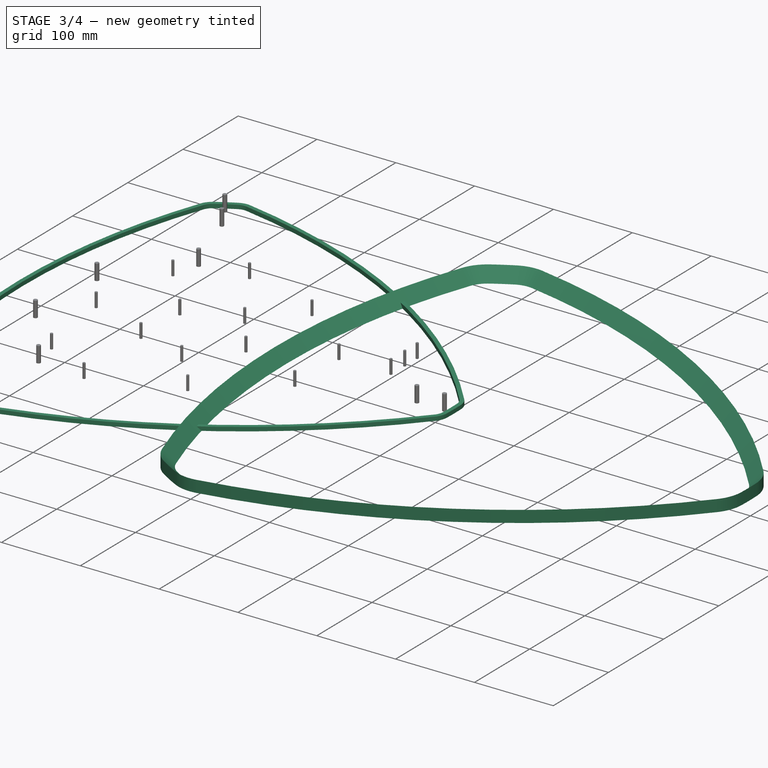
[diagram: stage 3 of 4 — iso view after this stage's code; geometry added in this stage tinted green]
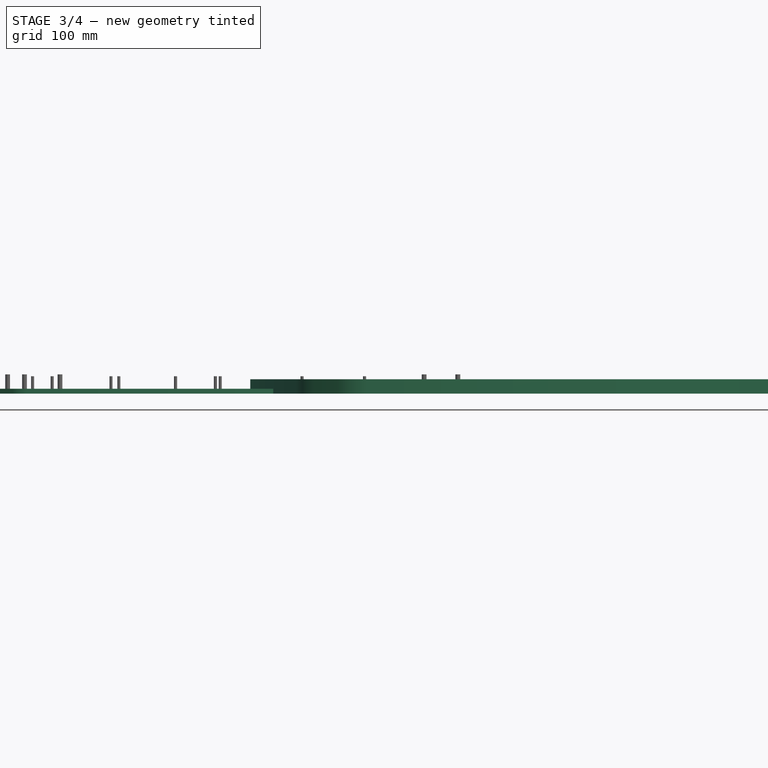
[diagram: stage 3 of 4 — front view after this stage's code; geometry added in this stage tinted green]
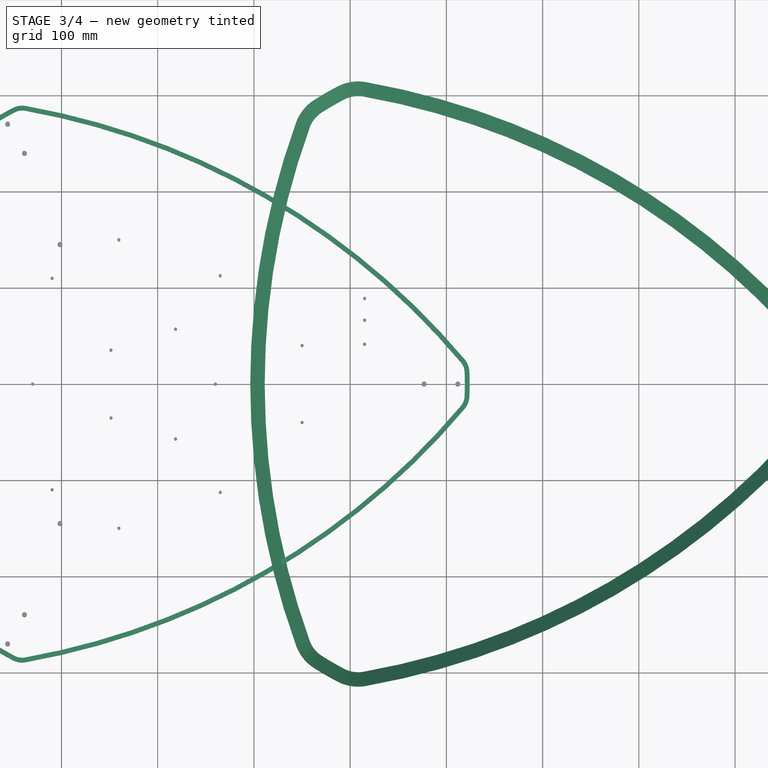
[diagram: stage 3 of 4 — top view after this stage's code; geometry added in this stage tinted green]
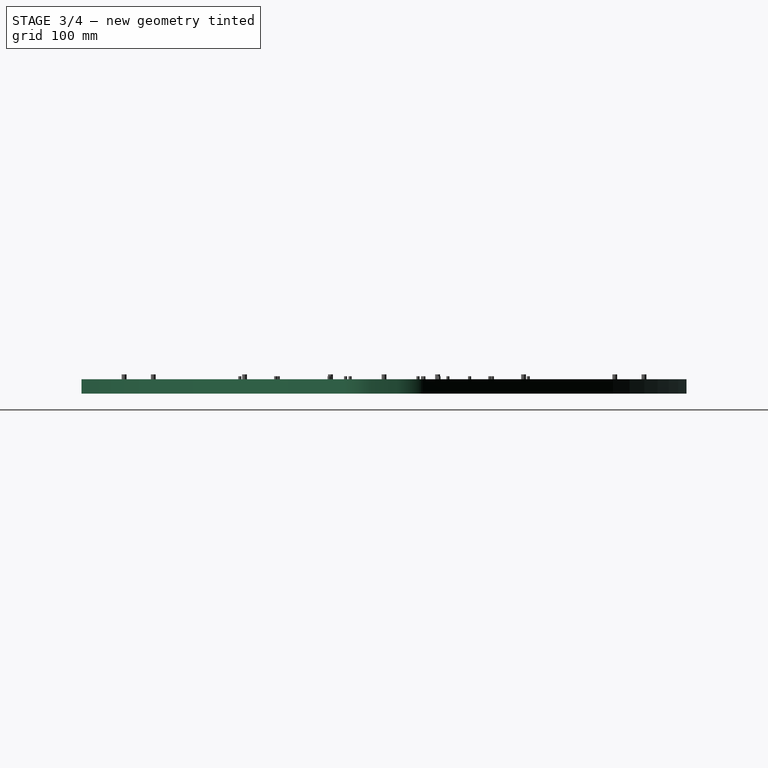
[diagram: stage 3 of 4 — right view after this stage's code; geometry added in this stage tinted green]
FEATURE [Sketcher::SketchObject] Sketch
  ArcFitTolerance = 0
  AttachmentOffset = pos=(349.171,0,0) rot=(0,0,1;0rad)
  AttachmentSupport = -> [XZ_Plane001]
  FullyConstrained = true
  MakeInternals = false
  MapMode = 5
  Placement = pos=(349.171,0,0) rot=(1,0,0;1.5708rad)
  expr: .AttachmentOffset.Base.x = <<composit_stand3_basement_top_main>>#<<basement_top_main_sketch>>.Constraints.max_r
  sketch-geometry (3):
    g0: LineSegment StartX=0 StartY=0 StartZ=0 EndX=0 EndY=15 EndZ=0
    g1: LineSegment StartX=0 StartY=15 StartZ=0 EndX=-15 EndY=0 EndZ=0
    g2: LineSegment StartX=-15 StartY=0 StartZ=0 EndX=0 EndY=0 EndZ=0
  constraints (8):
    c: Coincident(g-1,g0)
    c: PointOnObject(g0,g-2)
    c: Coincident(g0,g1)
    c: PointOnObject(g1,g-1)
    c: Coincident(g1,g2)
    c: Coincident(g2,g0)
    c: Equal(g2,g0)
    c: DistanceY(g0,g0) = 15
FEATURE [PartDesign::SubShapeBinder] Binder002
  BindCopyOnChange = 0
  BindMode = 0
  ClaimChildren = true
  Context = -> Body001 [Binder002.]
  Fuse = false
  MakeFace = false
  OffsetFill = false
  OffsetIntersection = false
  OffsetJoinType = 0
  OffsetOpenResult = false
  PartialLoad = false
  Relative = false
  Support = -> [Connect]
  _Version = 2
FEATURE [PartDesign::AdditivePipe] AdditivePipe
  AuxilleryCurvelinear = true
  AuxillerySpineTangent = false
  Binormal = (0,0,0)
  Mode = 0
  Placement = pos=(0,0,0) rot=(1,0,0;1.5708rad)
  Profile = -> Sketch
  Refine = true
  Spine = -> Binder002
  SpineTangent = false
  Suppressed = false
  Transformation = 0
  Transition = 0
FEATURE [PartDesign::Body] Body001
  AllowCompound = false
  Group = -> [Sketch,Binder002,AdditivePipe]
  Origin = -> Origin001
  Tip = -> AdditivePipe
FEATURE [Part::Offset2D] Offset2D
  Fill = false
  Intersection = false
  Join = 0
  Mode = 1
  SelfIntersection = false
  Source = -> Connect
  Value = -25
FEATURE [Part::Offset2D] Offset2D001
  Fill = false
  Intersection = false
  Join = 0
  Mode = 1
  SelfIntersection = false
  Source = -> Offset2D
  Value = -5
FEATURE [Part::Face] Face
  FaceMakerClass = Part::FaceMakerBullseye
  Sources = -> [Offset2D]
FEATURE [Part::Face] Face001
  FaceMakerClass = Part::FaceMakerBullseye
  Sources = -> [Offset2D001]
FEATURE [Part::Cut] Cut
  Base = -> Face
  Tool = -> Face001
FEATURE [PartDesign::SubShapeBinder] Binder003
  BindCopyOnChange = 0
  BindMode = 0
  ClaimChildren = true
  Context = -> Body002 [Binder003.]
  Fuse = false
  MakeFace = true
  OffsetFill = false
  OffsetIntersection = false
  OffsetJoinType = 0
  OffsetOpenResult = false
  PartialLoad = false
  Relative = true
  Support = -> [Cut]
  _Version = 2
FEATURE [PartDesign::Pad] Pad001
  Direction = (0,0,1)
  Length = 5
  Length2 = 10
  Profile = -> Binder003
  Suppressed = false
  Type = 0
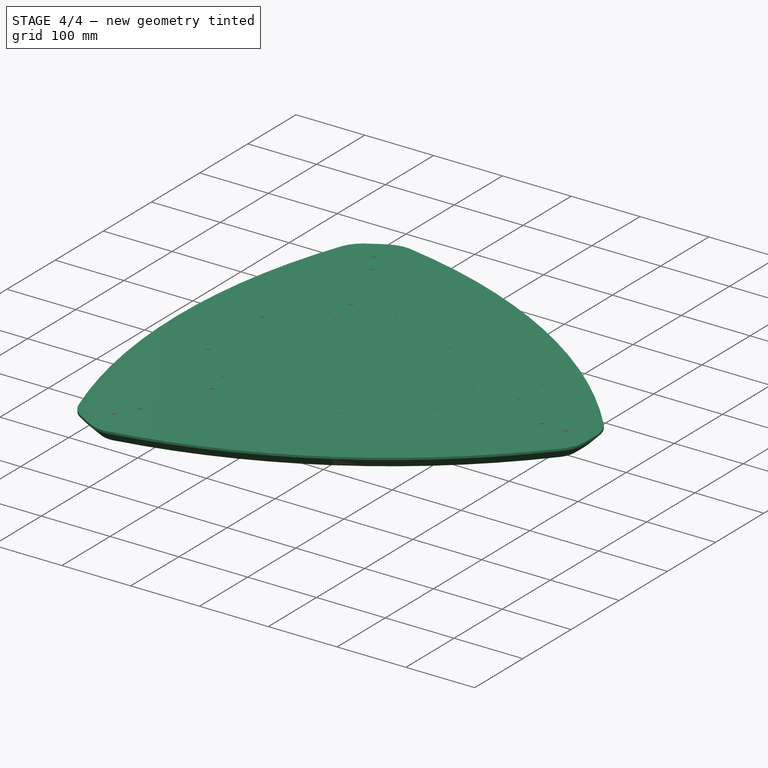
[diagram: stage 4 of 4 — iso view after this stage's code; geometry added in this stage tinted green]
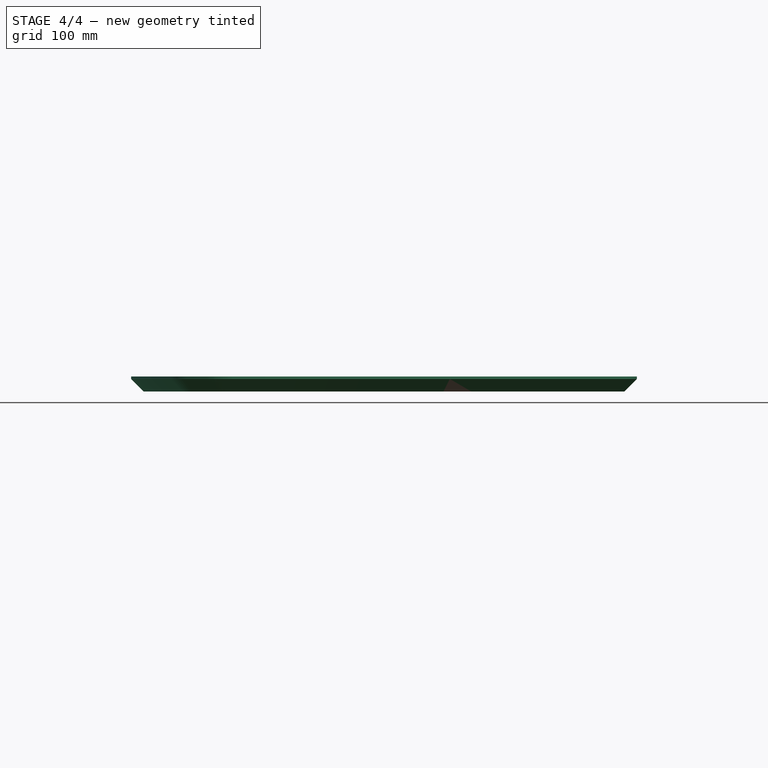
[diagram: stage 4 of 4 — front view after this stage's code; geometry added in this stage tinted green]
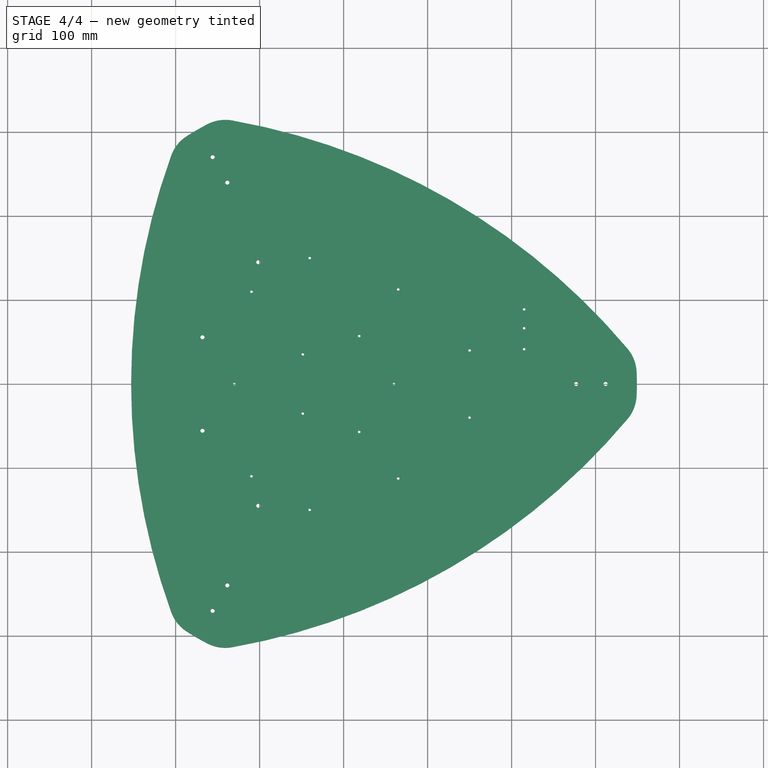
[diagram: stage 4 of 4 — top view after this stage's code; geometry added in this stage tinted green]
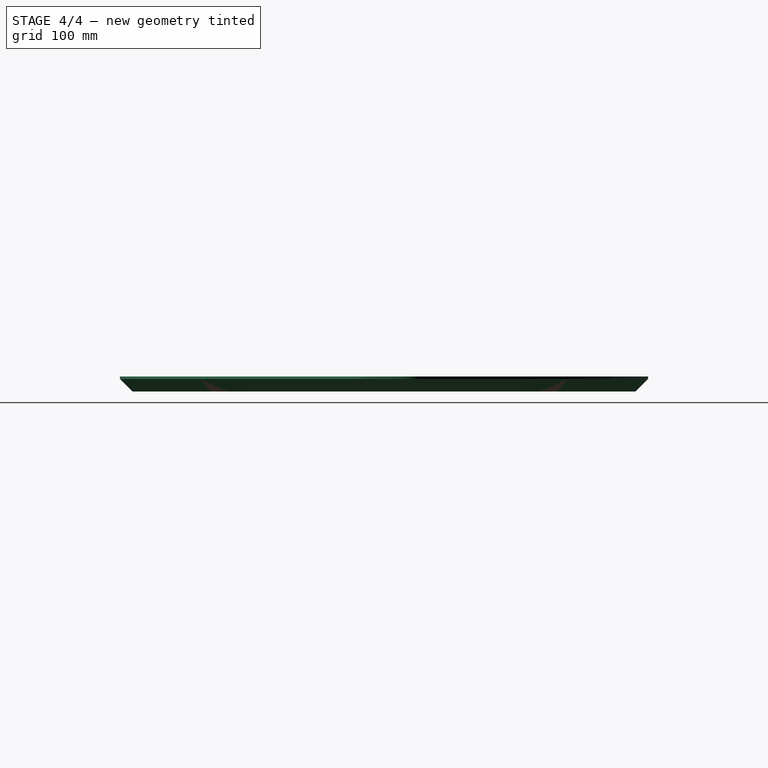
[diagram: stage 4 of 4 — right view after this stage's code; geometry added in this stage tinted green]
FEATURE [PartDesign::SubShapeBinder] Binder
  BindCopyOnChange = 0
  BindMode = 0
  ClaimChildren = true
  Fuse = false
  MakeFace = true
  OffsetFill = false
  OffsetIntersection = false
  OffsetJoinType = 0
  OffsetOpenResult = false
  PartialLoad = false
  Relative = true
  Support = -> [<external composit_stand3_basement_top_main.FCStd>#Sketch]
  _Version = 2
FEATURE [Part::FeaturePython] PolarArray  # WARN: FeaturePython — macro-defined, semantics opaque (R4)
  Alignment = 0
  AttacherType = Attacher::AttachEngine3D
  CellStart = A1
  Count = 3
  DistributionLaw = 0
  EndInclusive = false
  ExposePlacement = false
  FlipX = false
  FlipZ = false
  GeneratorMode = 0
  MarkerShape = 1
  MarkerSize = 0
  NumElements = 3
  OrientMode = 2
  Radius = 50
  Reverse = false
  SpanEnd = 360
  SpanStart = 0
  Step = 120
  Type = lattice2PolarArray2.PolarArray
  UseArcRadius = false
  UseArcRange = 0
  VSGVersion = 1
  Values = 0.0 | 120.0 | 240.0
  ValuesSource = 2
  isLattice = 1
FEATURE [Part::Mirroring] Part__Mirroring  label="Binder (Mirror #1)"
  Base = (0,0,0)
  Normal = (0,1,0)
  Source = -> Binder
FEATURE [Part::Compound] Compound
  Links = -> [Binder,Part__Mirroring]
FEATURE [Part::FeaturePython] Populate  label="Populate PolarArray with Compound"  # WARN: FeaturePython — macro-defined, semantics opaque (R4)
  Copying = 0
  ExposePlacement = false
  MarkerShape = 1
  MarkerSize = 0
  NumElements = 0
  Object = -> Compound
  OutputCompounding = 1
  PlacementsTo = -> PolarArray
  Referencing = 1
  Type = lattice2PopulateCopies.LatticePopulateCopies
  isLattice = 0
FEATURE [Part::FeaturePython] Connect  # WARN: FeaturePython — macro-defined, semantics opaque (R4)
  Objects = -> [Populate]
  Tolerance = 0
FEATURE [PartDesign::SubShapeBinder] Binder001
  BindCopyOnChange = 0
  BindMode = 0
  ClaimChildren = true
  Context = -> Body [Binder001.]
  Fuse = false
  MakeFace = true
  OffsetFill = false
  OffsetIntersection = false
  OffsetJoinType = 0
  OffsetOpenResult = false
  PartialLoad = false
  Relative = true
  Support = -> [Connect]
  _Version = 2
FEATURE [PartDesign::Pad] Pad
  Direction = (0,0,1)
  Length = 18
  Length2 = 10
  Profile = -> Binder001
  Suppressed = false
  Type = 0
FEATURE [Part::MultiFuse] Fusion
  Shapes = -> [Body001,Body002,Populate001,Populate005,Populate006]
FEATURE [PartDesign::Boolean] Boolean
  BaseFeature = -> Pad
  Group = -> [Fusion]
  Refine = true
  Suppressed = false
  Type = 1
  UsePlacement = true
FEATURE [PartDesign::Body] Body  label="top"
  AllowCompound = false
  Group = -> [Binder001,Pad,Boolean,Local_CS,Local_CS001,Local_CS002]
  Origin = -> Origin
  Tip = -> Boolean

RESOLVED EXTERNAL PARTS (link-assembly join: the EXTERNAL_REF files above that resolve inside this repo's crawl, each included once):
---- part ../U-fix.FCStd = doc fcstd_8b42821c5992 ----
FCSTD DOCUMENT  (FreeCAD 1.1R38827 (Git))
Label: U-fix
License: All rights reserved
LicenseURL: http://en.wikipedia.org/wiki/All_rights_reserved
objects: Sketcher::SketchObject×7, TechDraw::DrawViewDimension×4, TechDraw::DrawViewPart×3, PartDesign::SubShapeBinder×2, PartDesign::Pocket×2, PartDesign::FeaturePython×1, PartDesign::Mirrored×1, TechDraw::DrawSVGTemplate×1, Part::Feature×1, PartDesign::Hole×1, PartDesign::Body×1, TechDraw::DrawPage×1, App::DocumentObjectGroup×1
note: 37 computed .brp shape members not serialized (recipe doc carries the construction recipe); baked Part::Feature solids carry a one-line shape summary decoded from their .brp
EXTERNAL_REF file=ugol90degX40mm.FCStd obj=Binder002
EXTERNAL_REF file=wheel50mm.FCStd obj=Populate001

FEATURE [Sketcher::SketchObject] Sketch
  ArcFitTolerance = 0
  AttachmentSupport = -> [XZ_Plane]
  FullyConstrained = true
  MakeInternals = false
  MapMode = 5
  Placement = pos=(0,0,0) rot=(1,0,0;1.5708rad)
  sketch-geometry (5):
    g0: LineSegment StartX=-11.5 StartY=16 StartZ=0 EndX=-11.5 EndY=0 EndZ=0
    g1: LineSegment StartX=-11.5 StartY=0 StartZ=0 EndX=11.5 EndY=0 EndZ=0
    g2: LineSegment StartX=11.5 StartY=0 StartZ=0 EndX=11.5 EndY=16 EndZ=0
    g3: LineSegment [constr] StartX=11.5 StartY=16 StartZ=0 EndX=-11.5 EndY=16 EndZ=0
    g4: GeomPoint [constr] X=0 Y=8 Z=0
  constraints (13):
    c: Coincident(g0,g1)
    c: Coincident(g1,g2)
    c: Coincident(g2,g3)
    c: Coincident(g3,g0)
    c: Horizontal(g1)
    c: Horizontal(g3)
    c: Vertical(g0)
    c: Vertical(g2)
    c: Symmetric(g1,g0,g4)
    c: PointOnObject(g4,g-2)
    c: PointOnObject(g1,g-1)
    c: DistanceX(g1,g1) = 23  'width'
    c: DistanceY(g2) = 16  'height'
FEATURE [PartDesign::FeaturePython] BaseBend  # WARN: FeaturePython — macro-defined, semantics opaque (R4)
  BendSide = 1
  BendSketch = -> Sketch
  MidPlane = true
  Reverse = false
  Suppressed = false
  length = 65
  radius = 2
  thickness = 1
FEATURE [PartDesign::SubShapeBinder] Binder  label="U-fix_vert_holes"
  BindCopyOnChange = 0
  BindMode = 0
  ClaimChildren = false
  Context = -> Body [Binder.]
  Fuse = false
  MakeFace = true
  OffsetFill = false
  OffsetIntersection = false
  OffsetJoinType = 0
  OffsetOpenResult = false
  PartialLoad = false
  Placement = pos=(0,0,0) rot=(0,0,1;1.5708rad)
  Relative = true
  Support = -> [<external ugol90degX40mm.FCStd>#Binder002]
  _Version = 2
  expr: Support = <<ugol90degX40mm>>#<<vert>>._self
FEATURE [PartDesign::Pocket] Pocket
  BaseFeature = -> BaseBend
  Direction = (1,-2e-16,0)
  Length = 5
  Length2 = 5
  Midplane = true
  Profile = -> Binder
  Suppressed = false
  Type = 1
FEATURE [Sketcher::SketchObject] Sketch001
  ArcFitTolerance = 0
  AttachmentOffset = pos=(32.5,16,0) rot=(0,0,1;0rad)
  AttachmentSupport = -> [YZ_Plane]
  FullyConstrained = true
  MakeInternals = false
  MapMode = 5
  Placement = pos=(0,32.5,16) rot=(0.57735,0.57735,0.57735;2.0944rad)
  expr: .AttachmentOffset.Base.x = BaseBend.length / 2
  expr: .AttachmentOffset.Base.y = Sketch.Constraints.height
  sketch-geometry (3):
    g0: ArcOfCircle CenterX=-5 CenterY=-5 CenterZ=0 NormalX=0 NormalY=0 NormalZ=1 AngleXU=0 Radius=5 StartAngle=0 EndAngle=1.5708
    g1: LineSegment StartX=-9e-16 StartY=-5 StartZ=0 EndX=0 EndY=0 EndZ=0
    g2: LineSegment StartX=0 StartY=0 StartZ=0 EndX=-5.00003 EndY=-4.65468e-11 EndZ=0
  constraints (8):
    c: PointOnObject(g0,g-1)
    c: PointOnObject(g0,g-2)
    c: Coincident(g1,g2)
    c: Coincident(g2,g0)
    c: Tangent(g2,g0)
    c: Tangent(g0,g1) = -1.5708
    c: Coincident(g1,g-1)
    c: Diameter(g0) = 10
FEATURE [PartDesign::Pocket] Pocket001
  BaseFeature = -> Pocket
  Direction = (-1,0,0)
  Length = 5
  Length2 = 5
  Midplane = true
  Profile = -> Sketch001
  ReferenceAxis = -> Sketch001 [N_Axis]
  Suppressed = false
  Type = 1
FEATURE [PartDesign::Mirrored] Mirrored
  BaseFeature = -> Pocket001
  MirrorPlane = -> XZ_Plane
  Originals = -> [Pocket001]
  Suppressed = false
  TransformMode = 0
FEATURE [Sketcher::SketchObject] Sketch002  label="holes_bottom"
  ArcFitTolerance = 0
  AttachmentSupport = -> [XY_Plane]
  FullyConstrained = true
  MakeInternals = false
  MapMode = 5
  sketch-geometry (2):
    g0: Circle CenterX=0 CenterY=17.5 CenterZ=0 NormalX=0 NormalY=0 NormalZ=1 AngleXU=0 Radius=2.5
    g1: Circle CenterX=0 CenterY=-17.5 CenterZ=0 NormalX=0 NormalY=0 NormalZ=1 AngleXU=0 Radius=2.5
  constraints (5):
    c: PointOnObject(g0,g-2)
    c: Symmetric(g1,g0,g-1)
    c: Equal(g1,g0)
    c: Diameter(g1) = 5
    c: DistanceY(g1,g0) = 35
FEATURE [TechDraw::DrawSVGTemplate] Template
  Height = 210
  Orientation = 1
  Template = <path>
  Width = 297
FEATURE [Part::Feature] Unfold
  Placement = pos=(0,0,0) rot=(0,0,1;1.5708rad)
  shape: bbox 53 x 50.85 x 1 mm, 16 faces (baked)
FEATURE [Sketcher::SketchObject] Unfold_Sketch_Outline
  ArcFitTolerance = 0
  FullyConstrained = false
  MakeInternals = false
  sketch-geometry (8):
    g0: ArcOfCircle CenterX=21.5 CenterY=-20.427 CenterZ=0 NormalX=0 NormalY=0 NormalZ=1 AngleXU=4e-16 Radius=5 StartAngle=4.71238 EndAngle=6.28319
    g1: LineSegment StartX=26.5 StartY=20.427 StartZ=0 EndX=26.5 EndY=-20.427 EndZ=0
    g2: ArcOfCircle CenterX=21.5 CenterY=20.427 CenterZ=0 NormalX=0 NormalY=0 NormalZ=1 AngleXU=-4e-16 Radius=5 StartAngle=0 EndAngle=1.5708
    g3: LineSegment StartX=21.5 StartY=25.427 StartZ=0 EndX=-21.5 EndY=25.427 EndZ=0
    g4: ArcOfCircle CenterX=-21.5 CenterY=20.427 CenterZ=0 NormalX=0 NormalY=0 NormalZ=1 AngleXU=-3.14159 Radius=5 StartAngle=4.71238 EndAngle=6.28319
    g5: LineSegment StartX=-26.5 StartY=20.427 StartZ=0 EndX=-26.5 EndY=-20.427 EndZ=0
    g6: ArcOfCircle CenterX=-21.5 CenterY=-20.427 CenterZ=0 NormalX=0 NormalY=0 NormalZ=1 AngleXU=3.14159 Radius=5 StartAngle=0 EndAngle=1.5708
    g7: LineSegment StartX=21.5 StartY=-25.427 StartZ=0 EndX=-21.5 EndY=-25.427 EndZ=0
FEATURE [Sketcher::SketchObject] Unfold_Sketch_Internal
  ArcFitTolerance = 0
  FullyConstrained = false
  MakeInternals = false
  sketch-geometry (6):
    g0: Circle CenterX=17.5 CenterY=0 CenterZ=0 NormalX=0 NormalY=0 NormalZ=1 AngleXU=1.5708 Radius=2.75
    g1: Circle CenterX=-17.5 CenterY=0 CenterZ=0 NormalX=0 NormalY=0 NormalZ=1 AngleXU=1.5708 Radius=2.75
    g2: Circle CenterX=20 CenterY=-19.927 CenterZ=0 NormalX=0 NormalY=0 NormalZ=1 AngleXU=2e-16 Radius=1.7
    g3: Circle CenterX=-20 CenterY=-19.927 CenterZ=0 NormalX=0 NormalY=0 NormalZ=1 AngleXU=2e-16 Radius=1.7
    g4: Circle CenterX=20 CenterY=19.927 CenterZ=0 NormalX=0 NormalY=0 NormalZ=-1 AngleXU=-3.14159 Radius=1.7
    g5: Circle CenterX=-20 CenterY=19.927 CenterZ=0 NormalX=0 NormalY=0 NormalZ=-1 AngleXU=-3.14159 Radius=1.7
FEATURE [Sketcher::SketchObject] Unfold_Sketch_bends
  ArcFitTolerance = 0
  FullyConstrained = false
  MakeInternals = false
  sketch-geometry (2):
    g0: LineSegment StartX=-26.5 StartY=10.4635 StartZ=0 EndX=26.5 EndY=10.4635 EndZ=0
    g1: LineSegment StartX=-26.5 StartY=-10.4635 StartZ=0 EndX=26.5 EndY=-10.4635 EndZ=0
FEATURE [Sketcher::SketchObject] Unfold_Sketch
  ArcFitTolerance = 0
  ExternalGeometry = -> [Unfold_Sketch_bends]
  FullyConstrained = false
  MakeInternals = false
  sketch-geometry (18):
    g0: ArcOfCircle CenterX=21.5 CenterY=-20.427 CenterZ=0 NormalX=0 NormalY=0 NormalZ=1 AngleXU=4e-16 Radius=5 StartAngle=4.71238 EndAngle=6.28319
    g1: LineSegment StartX=21.5 StartY=-25.427 StartZ=0 EndX=-21.5 EndY=-25.427 EndZ=0
    g2: ArcOfCircle CenterX=-21.5 CenterY=-20.427 CenterZ=0 NormalX=0 NormalY=0 NormalZ=1 AngleXU=3.14159 Radius=5 StartAngle=0 EndAngle=1.5708
    g3: ArcOfCircle CenterX=-21.5 CenterY=20.427 CenterZ=0 NormalX=0 NormalY=0 NormalZ=1 AngleXU=-3.14159 Radius=5 StartAngle=4.71238 EndAngle=6.28319
    g4: LineSegment StartX=21.5 StartY=25.427 StartZ=0 EndX=-21.5 EndY=25.427 EndZ=0
    g5: ArcOfCircle CenterX=21.5 CenterY=20.427 CenterZ=0 NormalX=0 NormalY=0 NormalZ=1 AngleXU=-4e-16 Radius=5 StartAngle=0 EndAngle=1.5708
    g6: Circle CenterX=-17.5 CenterY=0 CenterZ=0 NormalX=0 NormalY=0 NormalZ=1 AngleXU=1.5708 Radius=2.75
    g7: Circle CenterX=17.5 CenterY=0 CenterZ=0 NormalX=0 NormalY=0 NormalZ=1 AngleXU=1.5708 Radius=2.75
    g8: Circle CenterX=-20 CenterY=19.927 CenterZ=0 NormalX=0 NormalY=0 NormalZ=-1 AngleXU=-3.14159 Radius=1.7
    g9: Circle CenterX=20 CenterY=19.927 CenterZ=0 NormalX=0 NormalY=0 NormalZ=-1 AngleXU=-3.14159 Radius=1.7
    g10: Circle CenterX=-20 CenterY=-19.927 CenterZ=0 NormalX=0 NormalY=0 NormalZ=1 AngleXU=2e-16 Radius=1.7
    g11: Circle CenterX=20 CenterY=-19.927 CenterZ=0 NormalX=0 NormalY=0 NormalZ=1 AngleXU=2e-16 Radius=1.7
    g12: LineSegment StartX=26.5 StartY=20.427 StartZ=0 EndX=26.5 EndY=-20.427 EndZ=0
    g13: LineSegment StartX=-26.5 StartY=20.427 StartZ=0 EndX=-26.5 EndY=-20.427 EndZ=0
    g14: LineSegment StartX=26.5 StartY=-10.4635 StartZ=0 EndX=24.5 EndY=-10.4635 EndZ=0
    g15: LineSegment StartX=26.5 StartY=10.4635 StartZ=0 EndX=24.5 EndY=10.4635 EndZ=0
    g16: LineSegment StartX=-26.5 StartY=10.4635 StartZ=0 EndX=-24.5 EndY=10.4635 EndZ=0
    g17: LineSegment StartX=-26.5 StartY=-10.4635 StartZ=0 EndX=-24.5 EndY=-10.4635 EndZ=0
  constraints (20):
    c: Coincident(g2,g13)
    c: Coincident(g3,g13)
    c: Coincident(g1,g2)
    c: Coincident(g3,g4)
    c: Coincident(g0,g1)
    c: Coincident(g4,g5)
    c: Coincident(g0,g12)
    c: Coincident(g5,g12)
    c: Coincident(g14,g-4)
    c: Coincident(g15,g-3)
    c: Coincident(g16,g-3)
    c: Coincident(g17,g-4)
    c: PointOnObject(g17,g-4)
    c: PointOnObject(g16,g-3)
    c: PointOnObject(g15,g-3)
    c: PointOnObject(g14,g-4)
    c: Equal(g14,g15)
    c: Equal(g15,g16)
    c: Equal(g16,g17)
    c: Distance(g17) = 2
FEATURE [PartDesign::SubShapeBinder] Binder001
  BindCopyOnChange = 0
  BindMode = 0
  ClaimChildren = false
  Context = -> Body [Binder001.]
  Fuse = false
  MakeFace = true
  OffsetFill = false
  OffsetIntersection = false
  OffsetJoinType = 0
  OffsetOpenResult = false
  PartialLoad = false
  Placement = pos=(0,0,0) rot=(0,0,1;0.785398rad)
  Relative = true
  Support = -> [<external wheel50mm.FCStd>#Populate001]
  _Version = 2
  expr: Support = wheel50mm#<<holes_max>>._self
FEATURE [PartDesign::Hole] Hole
  BaseFeature = -> Mirrored
  CustomThreadClearance = 0
  Depth = 25
  DepthType = 0
  Diameter = 5.5
  DrillForDepth = false
  DrillPoint = 1
  DrillPointAngle = 118
  HoleCutCountersinkAngle = 90
  HoleCutCustomValues = false
  HoleCutDepth = 0
  HoleCutDiameter = 6.1
  HoleCutType = 0
  ModelThread = false
  Profile = -> Binder001
  Reversed = true
  Suppressed = false
  Tapered = false
  TaperedAngle = 90
  ThreadClass = 0
  ThreadDepth = 25
  ThreadDepthType = 0
  ThreadDirection = 0
  ThreadFit = 0
  ThreadSize = 0
  ThreadType = 0
  Threaded = false
  UseCustomThreadClearance = false
FEATURE [PartDesign::Body] Body  label="U_fix_material_0.50ansi"
  AllowCompound = false
  Group = -> [Sketch,BaseBend,Binder,Pocket,Sketch001,Pocket001,Mirrored,Sketch002,Hole,Binder001]
  Origin = -> Origin
  Tip = -> Hole
FEATURE [TechDraw::DrawViewPart] View
  CoarseView = false
  Direction = (0,-1,0)
  Focus = 100
  HardHidden = false
  IsoCount = 0
  IsoHidden = false
  IsoVisible = false
  LockPosition = false
  Perspective = false
  Rotation = 0
  ScaleType = 0
  ScrubCount = 0
  SeamHidden = false
  SeamVisible = true
  SmoothHidden = false
  SmoothVisible = true
  Source = -> [Body]
  X = 69.5
  XDirection = (1,0,0)
  Y = 105
  expr: Y = Template.Height / 2
FEATURE [TechDraw::DrawViewPart] View001
  CoarseView = false
  Direction = (1,0,0)
  Focus = 100
  HardHidden = false
  IsoCount = 0
  IsoHidden = false
  IsoVisible = false
  LockPosition = false
  Perspective = false
  Rotation = 0
  ScaleType = 0
  ScrubCount = 0
  SeamHidden = false
  SeamVisible = true
  SmoothHidden = false
  SmoothVisible = true
  Source = -> [Body]
  X = 226.5
  XDirection = (0,1,-1.19209e-07)
  Y = 105
  expr: Y = Template.Height / 2
FEATURE [TechDraw::DrawViewPart] View002
  CoarseView = false
  Direction = (0,0,1)
  Focus = 100
  HardHidden = false
  IsoCount = 0
  IsoHidden = false
  IsoVisible = false
  LockPosition = false
  Perspective = false
  Rotation = 0
  ScaleType = 0
  ScrubCount = 0
  SeamHidden = false
  SeamVisible = true
  SmoothHidden = false
  SmoothVisible = true
  Source = -> [Body]
  X = 148.5
  XDirection = (1,0,0)
  Y = 105
  expr: Y = Template.Height / 2
FEATURE [TechDraw::DrawViewDimension] Dimension004
  AngleOverride = false
  Arbitrary = false
  ArbitraryTolerances = false
  EqualTolerance = true
  ExtensionAngle = 0
  FormatSpec = R%.2w
  FormatSpecOverTolerance = %+.2w
  FormatSpecUnderTolerance = %+.2w
  Inverted = false
  LineAngle = 0
  LockPosition = false
  MeasureType = 1
  OverTolerance = 0
  References2D = -> [View]
  Rotation = 0
  ScaleType = 0
  TheoreticalExact = false
  Type = 4
  UnderTolerance = 0
  X = -23.1952
  Y = -5.48414
FEATURE [TechDraw::DrawViewDimension] Dimension005
  AngleOverride = false
  Arbitrary = false
  ArbitraryTolerances = false
  EqualTolerance = true
  ExtensionAngle = 0
  FormatSpec = R%.2w
  FormatSpecOverTolerance = %+.2w
  FormatSpecUnderTolerance = %+.2w
  Inverted = false
  LineAngle = 0
  LockPosition = false
  MeasureType = 1
  OverTolerance = 0
  References2D = -> [View]
  Rotation = 0
  ScaleType = 0
  TheoreticalExact = false
  Type = 4
  UnderTolerance = 0
  X = 1.1181
  Y = 3.75976
FEATURE [TechDraw::DrawViewDimension] Dimension
  AngleOverride = false
  Arbitrary = false
  ArbitraryTolerances = false
  BoxCorners = (2) [(-11.5,-8,-1e-07),(11.5,8,1e-07)]
  EqualTolerance = true
  ExtensionAngle = 0
  FormatSpec = %.2w
  FormatSpecOverTolerance = %+.2w
  FormatSpecUnderTolerance = %+.2w
  Inverted = false
  LineAngle = 0
  LockPosition = false
  MeasureType = 1
  OverTolerance = 0
  References2D = -> [View]
  Rotation = 0
  ScaleType = 0
  TheoreticalExact = false
  Type = 1
  UnderTolerance = 0
  X = -0.401552
  Y = 25.4578
FEATURE [TechDraw::DrawViewDimension] Dimension006
  AngleOverride = false
  Arbitrary = false
  ArbitraryTolerances = false
  BoxCorners = (2) [(-11.5,-8,-1e-07),(11.5,8,1e-07)]
  EqualTolerance = true
  ExtensionAngle = 0
  FormatSpec = %.2w
  FormatSpecOverTolerance = %+.2w
  FormatSpecUnderTolerance = %+.2w
  Inverted = false
  LineAngle = 0
  LockPosition = false
  MeasureType = 1
  OverTolerance = 0
  References2D = -> [View]
  Rotation = 0
  ScaleType = 0
  TheoreticalExact = false
  Type = 2
  UnderTolerance = 0
  X = 18.6275
  Y = 2.60039
FEATURE [TechDraw::DrawPage] Page
  KeepUpdated = true
  NextBalloonIndex = 1
  ProjectionType = 0
  Template = -> Template
  Views = -> [View,View001,View002,Dimension004,Dimension005,Dimension,Dimension006]
FEATURE [App::DocumentObjectGroup] Group  label="unfold_Group"
  Group = -> [Page,Unfold,Unfold_Sketch,Unfold_Sketch_Outline,Unfold_Sketch_Internal,Unfold_Sketch_bends]
note: 1 file-system path scrubbed to <path> (originals preserved in the JSON sidecar)
---- part ../jamb_corner.FCStd = doc fcstd_c531c7f2f68e ----
FCSTD DOCUMENT  (FreeCAD 1.1R38827 (Git))
Label: jamb_corner
License: All rights reserved
LicenseURL: http://en.wikipedia.org/wiki/All_rights_reserved
objects: Part::FeaturePython×5, PartDesign::Body×2, Sketcher::SketchObject×1, PartDesign::FeaturePython×1, Part::Cylinder×1, Part::MultiFuse×1, PartDesign::Boolean×1, PartDesign::CoordinateSystem×1
note: 16 computed .brp shape members not serialized (recipe doc carries the construction recipe); baked Part::Feature solids carry a one-line shape summary decoded from their .brp

FEATURE [Sketcher::SketchObject] Sketch
  ArcFitTolerance = 0
  FullyConstrained = true
  MakeInternals = false
  sketch-geometry (2):
    g0: LineSegment StartX=0 StartY=61.5 StartZ=0 EndX=0 EndY=0 EndZ=0
    g1: LineSegment StartX=0 StartY=0 StartZ=0 EndX=102 EndY=0 EndZ=0
  constraints (6):
    c: PointOnObject(g0,g-2)
    c: Coincident(g0,g-1)
    c: Coincident(g0,g1)
    c: PointOnObject(g1,g-1)
    c: DistanceX(g1) = 102
    c: DistanceY(g0) = 61.5
FEATURE [Part::FeaturePython] Placment  # WARN: FeaturePython — macro-defined, semantics opaque (R4)
  AttacherType = Attacher::AttachEngine3D
  ExposePlacement = true
  MarkerShape = 1
  MarkerSize = 50
  NumElements = 1
  Placement = pos=(43.5,0,0) rot=(1,0,0;0rad)
  Type = lattice2AttachablePlacement.AttachablePlacement
  isLattice = 1
FEATURE [Part::FeaturePython] Placment001  # WARN: FeaturePython — macro-defined, semantics opaque (R4)
  AttacherType = Attacher::AttachEngine3D
  ExposePlacement = true
  MarkerShape = 1
  MarkerSize = 50
  NumElements = 1
  Placement = pos=(68.5,0,0) rot=(1,0,0;0rad)
  Type = lattice2AttachablePlacement.AttachablePlacement
  isLattice = 1
FEATURE [Part::FeaturePython] Placment002  # WARN: FeaturePython — macro-defined, semantics opaque (R4)
  AttacherType = Attacher::AttachEngine3D
  ExposePlacement = true
  MarkerShape = 1
  MarkerSize = 50
  NumElements = 1
  Placement = pos=(91,0,0) rot=(1,0,0;0rad)
  Type = lattice2AttachablePlacement.AttachablePlacement
  isLattice = 1
FEATURE [PartDesign::FeaturePython] BaseBend  # WARN: FeaturePython — macro-defined, semantics opaque (R4)
  BendSide = 1
  BendSketch = -> Sketch
  MidPlane = true
  Reverse = false
  Suppressed = false
  length = 20
  radius = 6
  thickness = 4.3
FEATURE [Part::Cylinder] Cylinder
  Angle = 360
  AttacherType = Attacher::AttachEngine3D
  FirstAngle = 0
  Height = 10
  Placement = pos=(0,0,0) rot=(1,0,0;3.14159rad)
  Radius = 2
  SecondAngle = 0
FEATURE [Part::FeaturePython] Join  label="holes_hor"  # WARN: FeaturePython — macro-defined, semantics opaque (R4)
  ExposePlacement = false
  Interleave = false
  Links = -> [Placment,Placment001,Placment002]
  MarkerShape = 1
  MarkerSize = 0
  NumElements = 3
  Placement = pos=(0,0,0) rot=(1,0,0;1.5708rad)
  Type = lattice2JoinArrays.JoinArrays
  isLattice = 1
FEATURE [Part::FeaturePython] Populate  label="Populate holes_hor with Cylinder"  # WARN: FeaturePython — macro-defined, semantics opaque (R4)
  Copying = 0
  ExposePlacement = false
  MarkerShape = 1
  MarkerSize = 0
  NumElements = 0
  Object = -> Cylinder
  OutputCompounding = 1
  PlacementsTo = -> Join
  Referencing = 0
  Type = lattice2PopulateCopies.LatticePopulateCopies
  isLattice = 0
FEATURE [PartDesign::Body] Body001
  AllowCompound = false
  Origin = -> Origin001
FEATURE [Part::MultiFuse] Fusion
  Shapes = -> [Populate]
FEATURE [PartDesign::Boolean] Boolean
  BaseFeature = -> BaseBend
  Group = -> [Fusion]
  Suppressed = false
  Type = 1
  UsePlacement = true
FEATURE [Part::FeaturePython] Placment001  # WARN: FeaturePython — macro-defined, semantics opaque (R4)
  AttacherType = Attacher::AttachEngine3D
  ExposePlacement = true
  MarkerShape = 1
  MarkerSize = 50
  NumElements = 1
  Placement = pos=(0,0,0) rot=(0,0.707107,0.707107;3.14159rad)
  Type = lattice2AttachablePlacement.AttachablePlacement
  isLattice = 1
FEATURE [Part::FeaturePython] Populate002  label="Populate Populate Placment with Populate modules_placement_x with LinearArray with Placment001"  # WARN: FeaturePython — macro-defined, semantics opaque (R4)
  Copying = 0
  ExposePlacement = false
  MarkerShape = 1
  MarkerSize = 0
  NumElements = 22
  Object = -> Placment001
  OutputCompounding = 0
  PlacementsTo = -> Populate001
  Referencing = 0
  Type = lattice2PopulateCopies.LatticePopulateCopies
  isLattice = 1
FEATURE [Part::FeaturePython] Placment002  label="sink_placement"  # WARN: FeaturePython — macro-defined, semantics opaque (R4)
  AttacherType = Attacher::AttachEngine3D
  ExposePlacement = true
  MarkerShape = 1
  MarkerSize = 50
  NumElements = 1
  Placement = pos=(8.37158,14.5,410) rot=(0,0,1;1.0472rad)
  Type = lattice2AttachablePlacement.AttachablePlacement
  isLattice = 1
  expr: .Placement.Base.x = <<composit_stand3_main>>#<<main_sketch>>.Constraints.end_width / 2 / tan(60)
  expr: .Placement.Base.y = <<composit_stand3_main>>#<<main_sketch>>.Constraints.end_width / 2
FEATURE [App::Link] Link001  label="module_holes"
  LinkedObject = -> <external ../module.FCStd>#Sketch
FEATURE [Sketcher::SketchObject] Sketch001  label="basin_cut_top_sketch"
  ArcFitTolerance = 0
  FullyConstrained = true
  MakeInternals = false
  Placement = pos=(0,0,400) rot=(1,0,0;1.5708rad)
  expr: .Placement.Base.z = <<basin_cut_sketch>>.Constraints.height
  expr: Constraints[26] = <<basin_cut_sketch>>.Constraints.length
  expr: Constraints[28] = <<composit_stand3_main>>#<<main_sketch>>.Constraints.x_face_offset + 0.5 mm
  expr: Constraints[30] = <<composit_stand3_sink_main>>#<<side_bottom_edge>>.Constraints.angle
  sketch-geometry (14):
    g0: ArcOfEllipse CenterX=8.87158 CenterY=5 CenterZ=0 NormalX=0 NormalY=0 NormalZ=1 MajorRadius=40 MinorRadius=15 AngleXU=1.5708 StartAngle=4.71239 EndAngle=6.28319
    g1: LineSegment [constr] StartX=8.87158 StartY=45 StartZ=0 EndX=8.87158 EndY=-35 EndZ=0
    g2: LineSegment [constr] StartX=-6.12842 StartY=5 StartZ=0 EndX=23.8716 EndY=5 EndZ=0
    g3: GeomPoint [constr] X=8.87158 Y=42.081 Z=0
    g4: GeomPoint [constr] X=8.87158 Y=-32.081 Z=0
    g5: ArcOfCircle CenterX=28.8716 CenterY=5 CenterZ=0 NormalX=0 NormalY=0 NormalZ=1 AngleXU=0 Radius=5 StartAngle=3.14159 EndAngle=4.71239
    g6: LineSegment StartX=28.8716 StartY=0 StartZ=0 EndX=0 EndY=0 EndZ=0
    g7: LineSegment StartX=0 StartY=0 StartZ=0 EndX=0 EndY=45 EndZ=0
    g8: LineSegment StartX=0 StartY=45 StartZ=0 EndX=8.87158 EndY=45 EndZ=0
    g9: LineSegment StartX=238.446 StartY=3.98838 StartZ=0 EndX=238.446 EndY=0 EndZ=0
    g10: LineSegment StartX=238.446 StartY=0 StartZ=0 EndX=170.25 EndY=0 EndZ=0
    g11: LineSegment StartX=170.836 StartY=0.0172058 StartZ=0 EndX=238.446 EndY=3.98838 EndZ=0
    g12: ArcOfCircle CenterX=170.25 CenterY=10 CenterZ=0 NormalX=0 NormalY=0 NormalZ=1 AngleXU=0 Radius=10 StartAngle=4.71239 EndAngle=4.77106
    g13: LineSegment [constr] StartX=0 StartY=0 StartZ=0 EndX=238.446 EndY=14.0056 EndZ=0
  constraints (31):
    c: InternalAlignment(g1-g4 -> g0) x4
    c: Horizontal(g2)
    c: PointOnObject(g5,g-1)
    c: Tangent(g5,g0) = 1.5708
    c: Coincident(g6,g7)
    c: PointOnObject(g7,g-2)
    c: Vertical(g7)
    c: Coincident(g7,g8)
    c: Horizontal(g8)
    c: Tangent(g8,g0) = 1.5708
    c: Radius(g5) = 5
    c: Tangent(g5,g6) = 1.5708
    c: Horizontal(g6)
    c: DistanceY(g7) = 45  'sink_cut_height'
    c: Horizontal(g0,g0)
    c: DistanceX(g2,g2) = 30
    c: PointOnObject(g10,g-1)
    c: Coincident(g11,g9)
    c: PointOnObject(g9,g-1)
    c: Vertical(g9)
    c: Coincident(g9,g10)
    c: Tangent(g12,g10) = 1.5708
    c: Tangent(g12,g11) = -1.5708
    c: DistanceX(g9) = 238.446
    c: Radius(g12) = 10
    c: DistanceX(g0) = 8.87158
    c: Coincident(g13,g6)
    c: Angle(g13) = 0.0586697
    c: Vertical(g9,g13)
    c: Parallel(g11,g13)
    c: Distance(g9,g13) = 10
FEATURE [Part::FeaturePython] Placment003  label="bottom_fix_placement"  # WARN: FeaturePython — macro-defined, semantics opaque (R4)
  AttacherType = Attacher::AttachEngine3D
  AttachmentOffset = pos=(0,0,0) rot=(0,0,1;1.5708rad)
  ExposePlacement = true
  MarkerShape = 1
  MarkerSize = 50
  NumElements = 1
  Placement = pos=(294.4,0,0) rot=(0,0,1;1.5708rad)
  Type = lattice2AttachablePlacement.AttachablePlacement
  isLattice = 1
FEATURE [Sketcher::SketchObject] Sketch002  label="leg_amplifier"
  ArcFitTolerance = 0
  ExternalGeometry = -> [Binder]
  FullyConstrained = true
  MakeInternals = false
  Placement = pos=(238.046,0,0) rot=(0,0,1;0rad)
  expr: .Placement.Base.x = <<basin_cut_sketch>>.Constraints.length - 0.4 mm
  sketch-geometry (5):
    g0: LineSegment StartX=10 StartY=-14.5 StartZ=0 EndX=0 EndY=-14.5 EndZ=0
    g1: LineSegment StartX=0 StartY=-14.5 StartZ=0 EndX=0 EndY=11.5 EndZ=0
    g2: LineSegment StartX=0 StartY=11.5 StartZ=0 EndX=15 EndY=11.5 EndZ=0
    g3: LineSegment [constr] StartX=113.826 StartY=14.5 StartZ=0 EndX=113.826 EndY=0 EndZ=0
    g4: LineSegment [constr] StartX=113.826 StartY=0 StartZ=0 EndX=113.826 EndY=-14.5 EndZ=0
  constraints (16):
    c: Horizontal(g0)
    c: Coincident(g0,g1)
    c: Vertical(g1)
    c: Coincident(g1,g2)
    c: Horizontal(g2)
    c: DistanceY(g1,g-3) = 3
    c: Coincident(g-3,g3)
    c: PointOnObject(g3,g-1)
    c: Vertical(g3)
    c: Coincident(g3,g4)
    c: Vertical(g4)
    c: Equal(g4,g3)
    c: Horizontal(g4,g0)
    c: DistanceX(g2,g2) = 15
    c: DistanceX(g0,g0) = 10
    c: PointOnObject(g-1,g1)
FEATURE [Part::FeaturePython] LinearArray001  # WARN: FeaturePython — macro-defined, semantics opaque (R4)
  Alignment = 0
  CellStart = A1
  Count = 5
  Dir = (1,0,0)
  DirIsDriven = true
  DistributionLaw = 0
  DrivenProperty = 1
  EndInclusive = true
  ExposePlacement = false
  GeneratorMode = 0
  MarkerShape = 1
  MarkerSize = 0
  NumElements = 5
  OrientMode = 1
  Point = (0,0,0)
  PointIsDriven = true
  Reverse = false
  SpanEnd = 50
  SpanStart = 0
  Step = 12.5
  Type = lattice2LinearArray.LinearArray
  VSGVersion = 1
  Values = 0.0 | 12.5 | 25.0 | 37.5 | 50.0
  ValuesSource = 2
  isLattice = 1
FEATURE [Part::FeaturePython] Placment004  # WARN: FeaturePython — macro-defined, semantics opaque (R4)
  AttacherType = Attacher::AttachEngine3D
  AttachmentOffset = pos=(-3,261,7) rot=(-0.57735,-0.57735,0.57735;2.0944rad)
  AttachmentSupport = -> [Sketch]
  ExposePlacement = true
  MapMode = 7
  MarkerShape = 1
  MarkerSize = 5
  NumElements = 1
  Placement = pos=(-1.6906,19.9282,261) rot=(0.250563,-0.935113,0.250563;1.63783rad)
  Type = lattice2AttachablePlacement.AttachablePlacement
  isLattice = 1
FEATURE [Part::FeaturePython] Populate004  label="Populate Placment004 with LinearArray001"  # WARN: FeaturePython — macro-defined, semantics opaque (R4)
  Copying = 0
  ExposePlacement = false
  MarkerShape = 1
  MarkerSize = 0
  NumElements = 5
  Object = -> LinearArray001
  OutputCompounding = 0
  PlacementsTo = -> Placment004
  Referencing = 0
  Type = lattice2PopulateCopies.LatticePopulateCopies
  isLattice = 1
FEATURE [Sketcher::SketchObject] Sketch003  label="basin_cut_sketch"
  ArcFitTolerance = 0
  FullyConstrained = true
  MakeInternals = false
  Placement = pos=(0,0,0) rot=(1,0,0;1.5708rad)
  expr: .Constraints.length = 206.5 / sin(60)
  sketch-geometry (4):
    g0: LineSegment StartX=0 StartY=0 StartZ=0 EndX=238.446 EndY=0 EndZ=0
    g1: LineSegment StartX=238.446 StartY=0 StartZ=0 EndX=238.446 EndY=400 EndZ=0
    g2: LineSegment StartX=238.446 StartY=400 StartZ=0 EndX=0 EndY=400 EndZ=0
    g3: LineSegment StartX=0 StartY=400 StartZ=0 EndX=0 EndY=0 EndZ=0
  constraints (11):
    c: Coincident(g0,g1)
    c: Coincident(g1,g2)
    c: Coincident(g2,g3)
    c: Coincident(g3,g0)
    c: Horizontal(g0)
    c: Horizontal(g2)
    c: Vertical(g1)
    c: Vertical(g3)
    c: Coincident(g0,g-1)
    c: DistanceY(g3,g3) = 400  'height'
    c: DistanceX(g0,g0) = 238.446  'length'
FEATURE [Part::Extrusion] Extrude001
  Base = -> Sketch003
  Dir = (0,-1,2e-16)
  DirMode = 2
  FaceMakerClass = Part::FaceMakerBullseye
  FaceMakerMode = 3
  LengthFwd = 29
  LengthRev = 0
  Solid = true
  Symmetric = true
  expr: LengthFwd = <<composit_stand3_main>>#<<main_sketch>>.Constraints.end_width
FEATURE [Part::Extrusion] Extrude002
  Base = -> Sketch001
  Dir = (0,-1,2e-16)
  DirMode = 2
  FaceMakerClass = Part::FaceMakerBullseye
  FaceMakerMode = 3
  LengthFwd = 29
  LengthRev = 0
  Solid = true
  Symmetric = true
  expr: LengthFwd = <<Extrude001>>.LengthFwd
FEATURE [Part::MultiFuse] Fusion  label="basin_cut"
  Refine = true
  Shapes = -> [Extrude001,Extrude002]
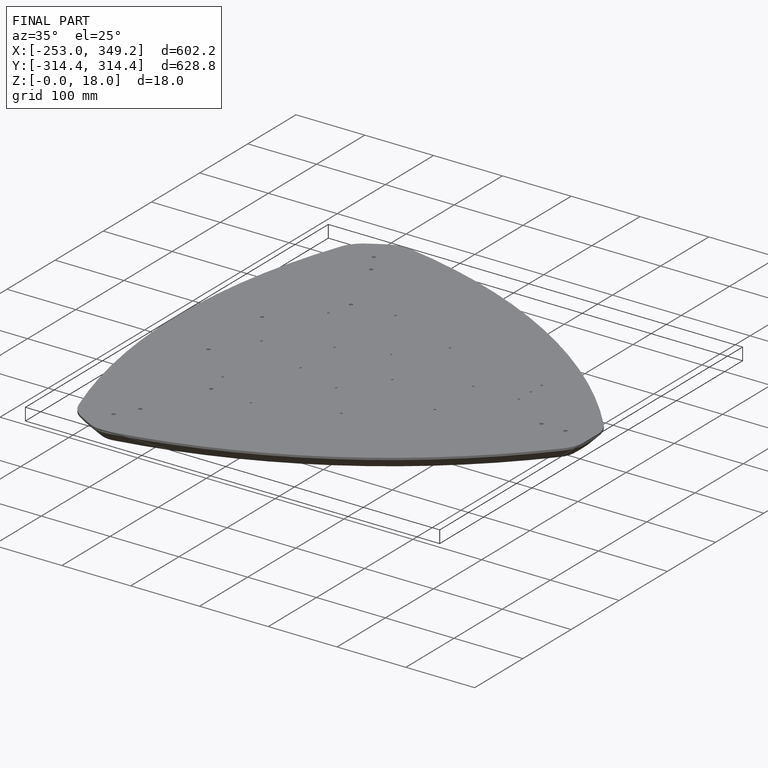
[diagram: finished part — iso view with bounding-box wireframe]
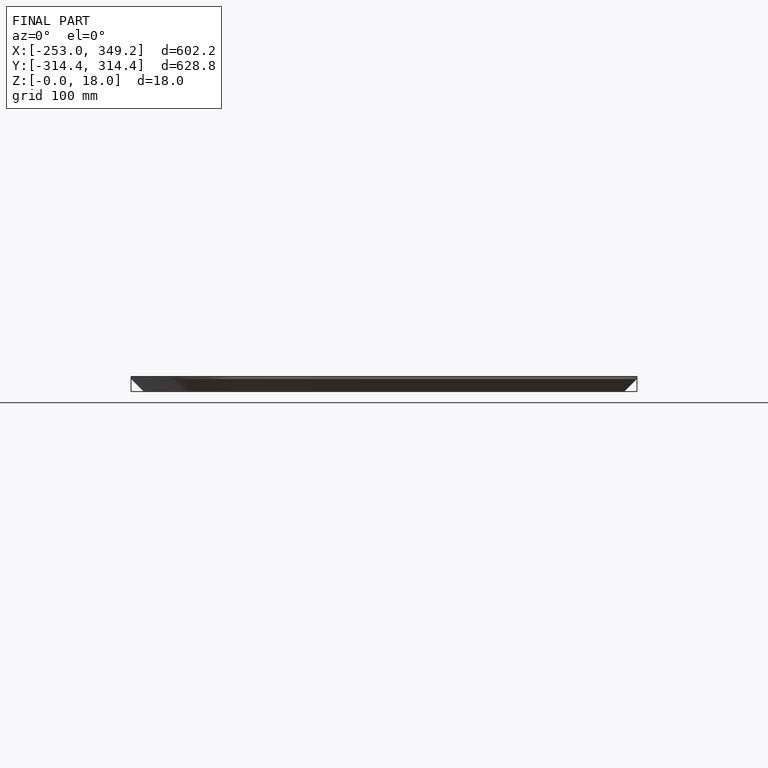
[diagram: finished part — front view with bounding-box wireframe]
